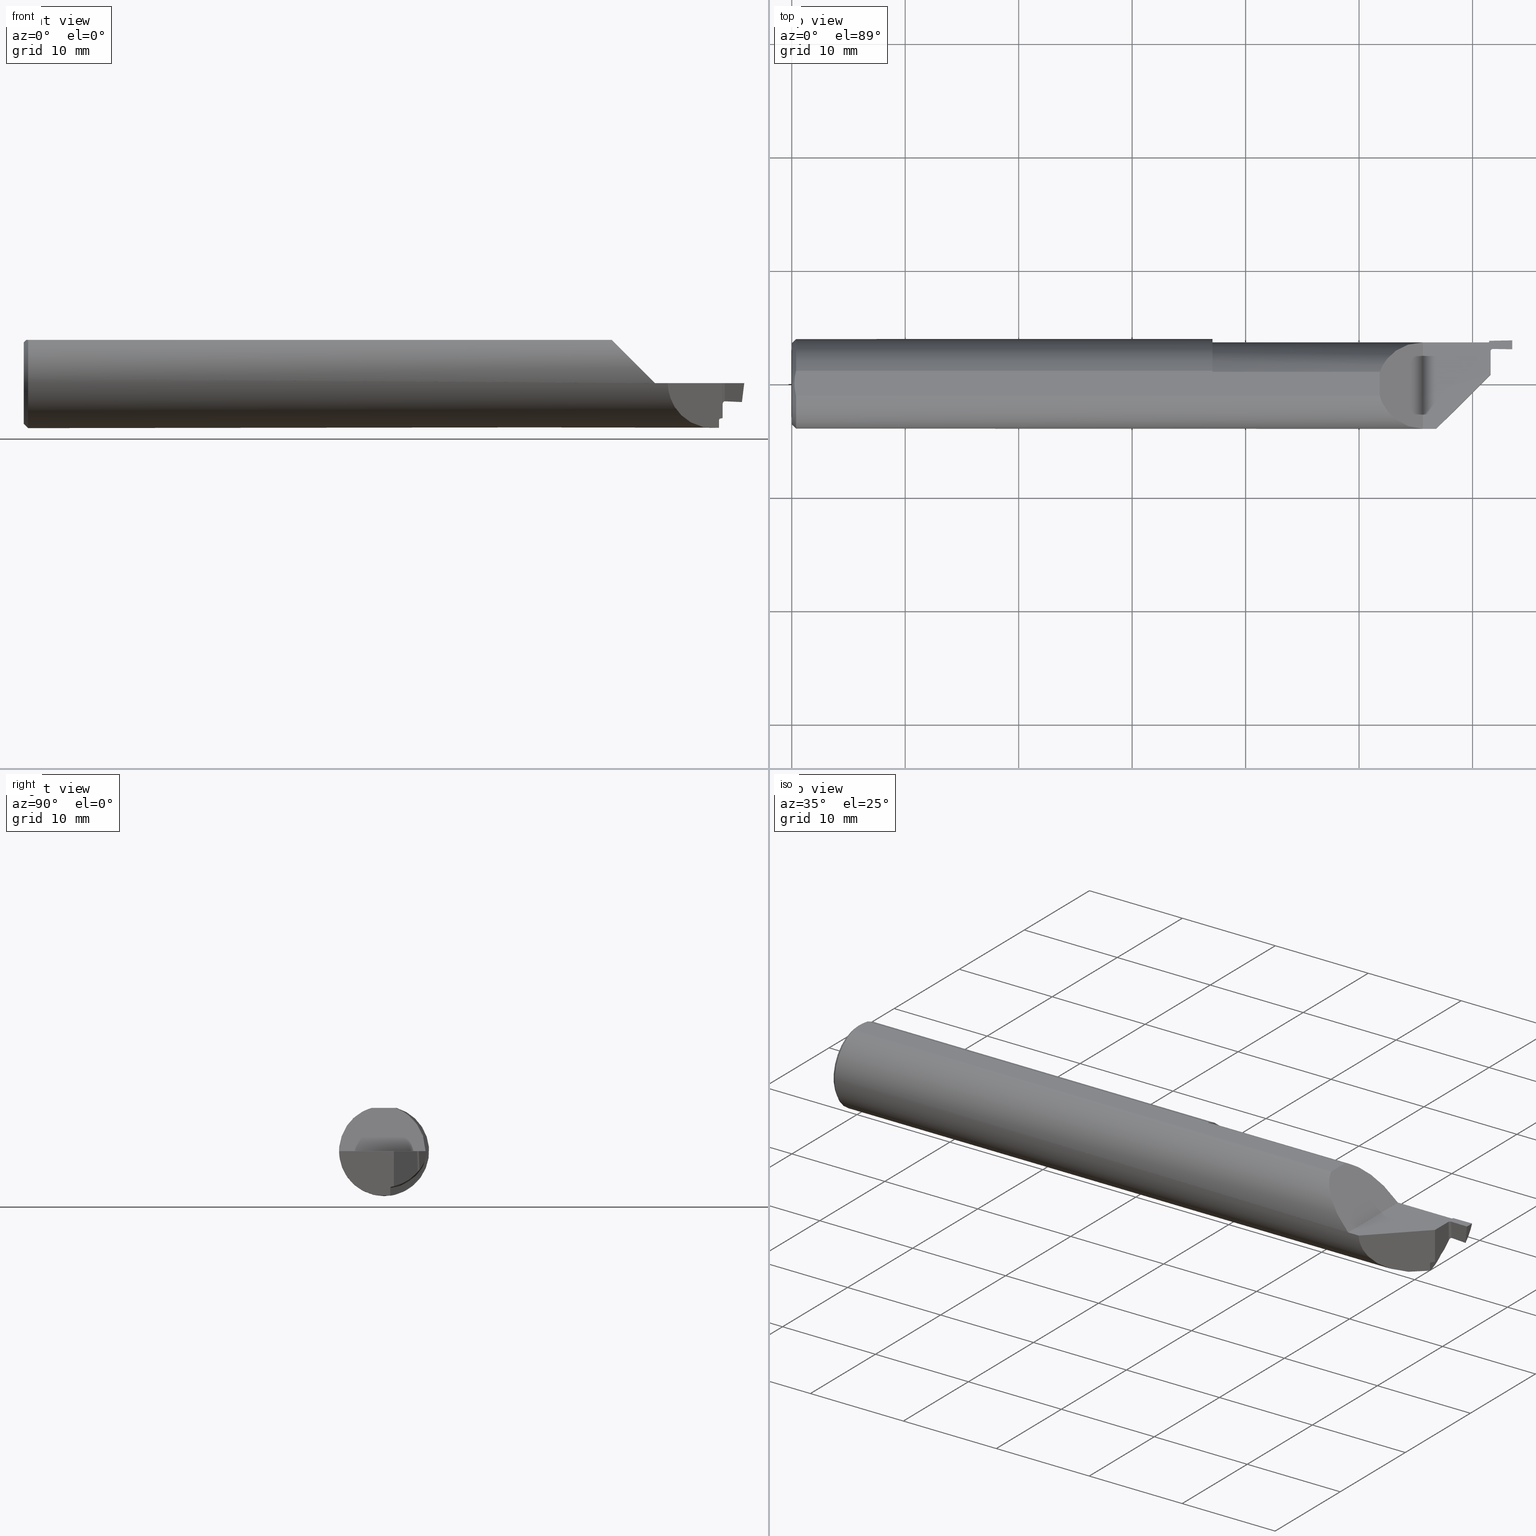
[diagram: canonical four-view strip — front | top / right | iso, engineering-drawing reading convention]
A machine part, canonical four-view strip (front | top / right | iso — engineering-drawing reading convention). The complete STEP part file that produces these views, byte-faithful:
ISO-10303-21;
HEADER;
FILE_DESCRIPTION (( 'STEP AP203' ),
    '1' );
FILE_NAME ('220073-FG312-030.STEP',
    '2024-06-10T23:01:41',
    ( '' ),
    ( '' ),
    'SwSTEP 2.0',
    'SolidWorks 2022',
    '' );
FILE_SCHEMA (( 'CONFIG_CONTROL_DESIGN' ));
ENDSEC;

DATA;
#1 = ORIENTED_EDGE ( 'NONE', *, *, #797, .T. ) ;
#2 = EDGE_LOOP ( 'NONE', ( #593, #512, #666, #639, #420, #343, #502 ) ) ;
#3 = CARTESIAN_POINT ( 'NONE',  ( 2.410339872995253430, 0.1358432710433603585, -0.05093267548819575830 ) ) ;
#4 = ORIENTED_EDGE ( 'NONE', *, *, #803, .T. ) ;
#5 = APPROVAL_PERSON_ORGANIZATION ( #162, #403, #670 ) ;
#6 = ORIENTED_EDGE ( 'NONE', *, *, #707, .F. ) ;
#7 = CARTESIAN_POINT ( 'NONE',  ( 2.410367050542459921, 0.1342862704047140809, -0.05517114649464890247 ) ) ;
#8 = DIRECTION ( 'NONE',  ( -0.9998476951563914916, -0.01745240643726934937, 0.000000000000000000 ) ) ;
#9 = CARTESIAN_POINT ( 'NONE',  ( 2.425000000000000266, 0.03390000000000001346, -0.1215404680557675837 ) ) ;
#10 = CARTESIAN_POINT ( 'NONE',  ( 0.01499999999999970281, 0.000000000000000000, -0.1560999999999999888 ) ) ;
#11 = TOROIDAL_SURFACE ( 'NONE', #617, 0.1549999999999999989, 0.005000000000000000104 ) ;
#12 = CARTESIAN_POINT ( 'NONE',  ( 2.500000000000000000, 0.1200992383597803692, 0.000000000000000000 ) ) ;
#13 = ADVANCED_FACE ( 'NONE', ( #527 ), #790, .F. ) ;
#14 =( BOUNDED_CURVE ( )  B_SPLINE_CURVE ( 3, ( #693, #568, #624, #632 ),
 .UNSPECIFIED., .F., .T. ) 
 B_SPLINE_CURVE_WITH_KNOTS ( ( 4, 4 ),
 ( 1.062754822839803381, 1.544540906567494876 ),
 .UNSPECIFIED. ) 
 CURVE ( )  GEOMETRIC_REPRESENTATION_ITEM ( )  RATIONAL_B_SPLINE_CURVE ( ( 1.000000000000000000, 0.9807502061007760119, 0.9807502061007760119, 1.000000000000000000 ) ) 
 REPRESENTATION_ITEM ( '' )  );
#15 = EDGE_LOOP ( 'NONE', ( #737, #613, #772, #390, #741 ) ) ;
#16 = DIRECTION ( 'NONE',  ( -0.0006090802009083879243, -0.03489418134011375294, 0.9993908270190957621 ) ) ;
#17 = ORIENTED_EDGE ( 'NONE', *, *, #198, .T. ) ;
#18 = VERTEX_POINT ( 'NONE', #209 ) ;
#19 = CARTESIAN_POINT ( 'NONE',  ( 2.415246186865591671, 0.1412541801540121988, -0.03003871284944778855 ) ) ;
#20 = CARTESIAN_POINT ( 'NONE',  ( 2.189999999999999947, -0.1560999679692472164, 9.999999999982123341E-05 ) ) ;
#21 = AXIS2_PLACEMENT_3D ( 'NONE', #600, #360, #285 ) ;
#22 = ORIENTED_EDGE ( 'NONE', *, *, #654, .F. ) ;
#23 = CARTESIAN_POINT ( 'NONE',  ( 1.460000000000000187, 0.04286257108480545641, 0.1500999999999999834 ) ) ;
#24 = DATE_AND_TIME ( #676, #252 ) ;
#25 = CARTESIAN_POINT ( 'NONE',  ( 2.415246186865591671, 0.1412541801540121988, -0.03003871284944778855 ) ) ;
#26 = ORIENTED_EDGE ( 'NONE', *, *, #290, .F. ) ;
#27 = CARTESIAN_POINT ( 'NONE',  ( 0.000000000000000000, 1.727976633596919191E-17, 0.1411000000000003085 ) ) ;
#28 = PLANE ( 'NONE',  #408 ) ;
#29 = FACE_OUTER_BOUND ( 'NONE', #292, .T. ) ;
#30 = ADVANCED_FACE ( 'NONE', ( #73 ), #11, .F. ) ;
#31 = EDGE_LOOP ( 'NONE', ( #785, #470, #163, #438, #795, #762 ) ) ;
#32 = DIRECTION ( 'NONE',  ( 0.000000000000000000, 0.000000000000000000, -1.000000000000000000 ) ) ;
#33 = CARTESIAN_POINT ( 'NONE',  ( 2.425001483111415723, 0.1134172310198061362, -0.0002790132549075327378 ) ) ;
#34 = CARTESIAN_POINT ( 'NONE',  ( 2.433000000000000274, 0.1132675090856191391, 0.000000000000000000 ) ) ;
#35 = ADVANCED_FACE ( 'NONE', ( #333 ), #514, .F. ) ;
#36 = VERTEX_POINT ( 'NONE', #665 ) ;
#37 = AXIS2_PLACEMENT_3D ( 'NONE', #489, #174, #500 ) ;
#38 = AXIS2_PLACEMENT_3D ( 'NONE', #753, #423, #539 ) ;
#39 = CARTESIAN_POINT ( 'NONE',  ( 0.000000000000000000, 0.000000000000000000, 0.000000000000000000 ) ) ;
#40 =( NAMED_UNIT ( * ) PLANE_ANGLE_UNIT ( ) SI_UNIT ( $, .RADIAN. ) );
#41 = DIRECTION ( 'NONE',  ( -0.7071067811865489050, -0.7071067811865461294, 0.000000000000000000 ) ) ;
#42 = CARTESIAN_POINT ( 'NONE',  ( 2.425025242321284136, 0.1139302148818168298, -0.04141809946750363292 ) ) ;
#43 = EDGE_CURVE ( 'NONE', #215, #809, #243, .T. ) ;
#44 = DIRECTION ( 'NONE',  ( -0.0006090802009083879243, -0.03489418134011375294, 0.9993908270190957621 ) ) ;
#45 = CARTESIAN_POINT ( 'NONE',  ( 2.425000000000000266, 0.03390000000000001346, -0.1560999999999999888 ) ) ;
#46 = CALENDAR_DATE ( 2024, 10, 6 ) ;
#47 = CARTESIAN_POINT ( 'NONE',  ( 0.01308010236197408062, -0.03587054952121924989, 0.1500999999999999834 ) ) ;
#48 = DIRECTION ( 'NONE',  ( 1.000000000000000000, 0.000000000000000000, 0.000000000000000000 ) ) ;
#49 = EDGE_CURVE ( 'NONE', #284, #505, #274, .T. ) ;
#50 = SHAPE_DEFINITION_REPRESENTATION ( #486, #669 ) ;
#51 = DIRECTION ( 'NONE',  ( 0.000000000000000000, -1.000000000000000000, 0.000000000000000000 ) ) ;
#52 = ORIENTED_EDGE ( 'NONE', *, *, #756, .F. ) ;
#53 =( BOUNDED_CURVE ( )  B_SPLINE_CURVE ( 3, ( #626, #185, #437, #192 ),
 .UNSPECIFIED., .F., .T. ) 
 B_SPLINE_CURVE_WITH_KNOTS ( ( 4, 4 ),
 ( 4.713013980425380112, 5.929564525929066576 ),
 .UNSPECIFIED. ) 
 CURVE ( )  GEOMETRIC_REPRESENTATION_ITEM ( )  RATIONAL_B_SPLINE_CURVE ( ( 1.000000000000000000, 0.8804232255846620170, 0.8804232255846620170, 1.000000000000000000 ) ) 
 REPRESENTATION_ITEM ( '' )  );
#54 = DIRECTION ( 'NONE',  ( -1.000000000000000000, -0.000000000000000000, -0.000000000000000000 ) ) ;
#55 = PERSON_AND_ORGANIZATION ( #395, #83 ) ;
#56 = CARTESIAN_POINT ( 'NONE',  ( 0.008999999999999465025, -0.007244529225202475144, 0.1500999999999999834 ) ) ;
#57 = VERTEX_POINT ( 'NONE', #402 ) ;
#58 = ORIENTED_EDGE ( 'NONE', *, *, #523, .T. ) ;
#59 = DIRECTION ( 'NONE',  ( 0.000000000000000000, 1.000000000000000000, 0.000000000000000000 ) ) ;
#60 = CARTESIAN_POINT ( 'NONE',  ( 1.938500000000000112, 0.03081474338883894229, -0.1530283032313957403 ) ) ;
#61 = EDGE_LOOP ( 'NONE', ( #831, #88, #712, #576, #207 ) ) ;
#62 = DIRECTION ( 'NONE',  ( -0.000000000000000000, -0.000000000000000000, 1.000000000000000000 ) ) ;
#63 = CARTESIAN_POINT ( 'NONE',  ( 2.413539792713095711, 0.1409844017169971930, -0.03142091763420357120 ) ) ;
#64 = VECTOR ( 'NONE', #524, 39.37007874015748143 ) ;
#65 = ORIENTED_EDGE ( 'NONE', *, *, #338, .T. ) ;
#66 = ORIENTED_EDGE ( 'NONE', *, *, #711, .F. ) ;
#67 = LINE ( 'NONE', #641, #479 ) ;
#68 = EDGE_CURVE ( 'NONE', #152, #700, #743, .T. ) ;
#69 = DIRECTION ( 'NONE',  ( -1.000000000000000000, -0.000000000000000000, -0.000000000000000000 ) ) ;
#70 = PRODUCT_DEFINITION_FORMATION_WITH_SPECIFIED_SOURCE ( 'ANY', '', #750, .NOT_KNOWN. ) ;
#71 = VERTEX_POINT ( 'NONE', #10 ) ;
#72 = CARTESIAN_POINT ( 'NONE',  ( 2.425044239961082315, 0.1157969674013244743, -0.07258980217702561133 ) ) ;
#73 = FACE_OUTER_BOUND ( 'NONE', #461, .T. ) ;
#74 = ORIENTED_EDGE ( 'NONE', *, *, #763, .T. ) ;
#75 = EDGE_CURVE ( 'NONE', #236, #126, #278, .T. ) ;
#76 = CARTESIAN_POINT ( 'NONE',  ( 2.425000000000000266, 0.1132675090856191391, -0.07546587076650415615 ) ) ;
#77 = CARTESIAN_POINT ( 'NONE',  ( 2.425039367740867480, 0.1155091351911401859, -0.0002059503887051005692 ) ) ;
#78 = VERTEX_POINT ( 'NONE', #342 ) ;
#79 = CARTESIAN_POINT ( 'NONE',  ( 2.419849323330116597, 0.02874932333011693056, -0.1225781668623821680 ) ) ;
#80 = CARTESIAN_POINT ( 'NONE',  ( 2.472080432957776797, 0.1228502612264647104, -0.06481358440678404442 ) ) ;
#81 = ORIENTED_EDGE ( 'NONE', *, *, #286, .T. ) ;
#82 = PRODUCT_RELATED_PRODUCT_CATEGORY ( 'detail', '', ( #750 ) ) ;
#83 = ORGANIZATION ( 'UNSPECIFIED', 'UNSPECIFIED', '' ) ;
#84 = CARTESIAN_POINT ( 'NONE',  ( 2.415830788882866731, 0.1412445888308691833, -0.03008889222423504275 ) ) ;
#85 = APPLICATION_PROTOCOL_DEFINITION ( 'international standard', 'config_control_design', 1994, #555 ) ;
#86 = CARTESIAN_POINT ( 'NONE',  ( 2.410674172906858814, 0.1166912419323255651, -0.1030683767120857686 ) ) ;
#87 = EDGE_CURVE ( 'NONE', #97, #312, #558, .T. ) ;
#88 = ORIENTED_EDGE ( 'NONE', *, *, #518, .T. ) ;
#89 = CARTESIAN_POINT ( 'NONE',  ( 2.189999999999999947, -0.2560999999999999943, 0.000000000000000000 ) ) ;
#90 = COORDINATED_UNIVERSAL_TIME_OFFSET ( 8, 0, .BEHIND. ) ;
#91 = LINE ( 'NONE', #808, #324 ) ;
#92 = VECTOR ( 'NONE', #99, 39.37007874015748143 ) ;
#93 = ORIENTED_EDGE ( 'NONE', *, *, #112, .T. ) ;
#94 = CARTESIAN_POINT ( 'NONE',  ( 2.039999999999999591, 0.03950672882812745340, 0.1500999999999999834 ) ) ;
#95 = CARTESIAN_POINT ( 'NONE',  ( 2.433178129481958329, 0.1234675780321281974, -0.06304626864655113461 ) ) ;
#96 = EDGE_CURVE ( 'NONE', #78, #498, #468, .T. ) ;
#97 = VERTEX_POINT ( 'NONE', #780 ) ;
#98 = LOCAL_TIME ( 16, 1, 41.00000000000000000, #564 ) ;
#99 = DIRECTION ( 'NONE',  ( 0.7071067811865483499, 0.000000000000000000, -0.7071067811865466846 ) ) ;
#100 = ADVANCED_FACE ( 'NONE', ( #205 ), #457, .T. ) ;
#101 =( CONVERSION_BASED_UNIT ( 'INCH', #543 ) LENGTH_UNIT ( ) NAMED_UNIT ( #114 ) );
#102 = DIRECTION ( 'NONE',  ( 0.000000000000000000, 0.000000000000000000, 1.000000000000000000 ) ) ;
#103 = ORIENTED_EDGE ( 'NONE', *, *, #351, .T. ) ;
#104 = DIRECTION ( 'NONE',  ( -1.000000000000000000, -0.000000000000000000, -0.000000000000000000 ) ) ;
#105 =( BOUNDED_CURVE ( )  B_SPLINE_CURVE ( 3, ( #20, #686, #217, #353 ),
 .UNSPECIFIED., .F., .T. ) 
 B_SPLINE_CURVE_WITH_KNOTS ( ( 4, 4 ),
 ( 4.713029595418896101, 6.005028202575334539 ),
 .UNSPECIFIED. ) 
 CURVE ( )  GEOMETRIC_REPRESENTATION_ITEM ( )  RATIONAL_B_SPLINE_CURVE ( ( 1.000000000000000000, 0.8656657255323875200, 0.8656657255323875200, 1.000000000000000000 ) ) 
 REPRESENTATION_ITEM ( '' )  );
#106 = DIRECTION ( 'NONE',  ( -0.0006094513490878692916, 0.000000000000000000, 0.9999998142845092364 ) ) ;
#107 = AXIS2_PLACEMENT_3D ( 'NONE', #364, #48, #706 ) ;
#108 = VECTOR ( 'NONE', #16, 39.37007874015748143 ) ;
#109 = CARTESIAN_POINT ( 'NONE',  ( 2.425000000000000266, 0.03390000000000001346, -0.1215404680557675837 ) ) ;
#110 = COORDINATED_UNIVERSAL_TIME_OFFSET ( 8, 0, .BEHIND. ) ;
#111 = DIRECTION ( 'NONE',  ( 1.000000000000000000, 0.000000000000000000, 0.000000000000000000 ) ) ;
#112 = EDGE_CURVE ( 'NONE', #297, #97, #531, .T. ) ;
#113 = CARTESIAN_POINT ( 'NONE',  ( 2.425045413323011712, 0.1141187145827106536, -0.07451507761243557348 ) ) ;
#114 = DIMENSIONAL_EXPONENTS ( 1.000000000000000000, 0.000000000000000000, 0.000000000000000000, 0.000000000000000000, 0.000000000000000000, 0.000000000000000000, 0.000000000000000000 ) ;
#115 = CARTESIAN_POINT ( 'NONE',  ( 2.417651584860487368, 0.1413420234085522587, -0.02992312736016335128 ) ) ;
#116 = ADVANCED_FACE ( 'NONE', ( #29 ), #473, .F. ) ;
#117 = CARTESIAN_POINT ( 'NONE',  ( 2.425011781546424494, 0.1137411175151299692, -0.01933139413795211328 ) ) ;
#118 = CARTESIAN_POINT ( 'NONE',  ( 2.433379501196029526, 0.1350041558047750112, -0.3934609555193290253 ) ) ;
#119 = ORIENTED_EDGE ( 'NONE', *, *, #307, .T. ) ;
#120 = AXIS2_PLACEMENT_3D ( 'NONE', #289, #104, #32 ) ;
#121 = CARTESIAN_POINT ( 'NONE',  ( 0.000000000000000000, 0.000000000000000000, -0.1411000000000003085 ) ) ;
#122 = CIRCLE ( 'NONE', #259, 0.1630000000000001170 ) ;
#123 = DIRECTION ( 'NONE',  ( 0.000000000000000000, -1.000000000000000000, 0.000000000000000000 ) ) ;
#124 = ORIENTED_EDGE ( 'NONE', *, *, #140, .T. ) ;
#125 = EDGE_CURVE ( 'NONE', #788, #525, #811, .T. ) ;
#126 = VERTEX_POINT ( 'NONE', #671 ) ;
#127 = CARTESIAN_POINT ( 'NONE',  ( 2.425000000000000266, 0.03390000000000001346, 0.000000000000000000 ) ) ;
#128 = COORDINATED_UNIVERSAL_TIME_OFFSET ( 8, 0, .BEHIND. ) ;
#129 = EDGE_CURVE ( 'NONE', #215, #262, #426, .T. ) ;
#130 = CARTESIAN_POINT ( 'NONE',  ( 0.000000000000000000, 1.819825143532968629E-17, 0.1411000000000003085 ) ) ;
#131 = ORIENTED_EDGE ( 'NONE', *, *, #583, .T. ) ;
#132 = AXIS2_PLACEMENT_3D ( 'NONE', #601, #412, #154 ) ;
#133 = CARTESIAN_POINT ( 'NONE',  ( 2.433000000000000274, 0.1132675090856191391, -0.1560999999999999888 ) ) ;
#134 = DIRECTION ( 'NONE',  ( 4.001730459469135844E-17, 1.000000000000000000, 0.000000000000000000 ) ) ;
#135 = ORIENTED_EDGE ( 'NONE', *, *, #261, .T. ) ;
#136 = VERTEX_POINT ( 'NONE', #545 ) ;
#137 = CARTESIAN_POINT ( 'NONE',  ( 2.414190716435626882, 0.1411693645472843484, -0.03048284773503953313 ) ) ;
#138 = VECTOR ( 'NONE', #255, 39.37007874015748143 ) ;
#139 = CARTESIAN_POINT ( 'NONE',  ( 2.413115654034749813, 0.02201565403474930321, -0.1256608521934950151 ) ) ;
#140 = EDGE_CURVE ( 'NONE', #608, #715, #91, .T. ) ;
#141 = ORIENTED_EDGE ( 'NONE', *, *, #140, .F. ) ;
#142 = LINE ( 'NONE', #393, #108 ) ;
#143 = DIRECTION ( 'NONE',  ( -1.000000000000000000, 4.001730459469135844E-17, -0.000000000000000000 ) ) ;
#144 = ADVANCED_FACE ( 'NONE', ( #227 ), #799, .F. ) ;
#145 = VERTEX_POINT ( 'NONE', #602 ) ;
#146 = DIRECTION ( 'NONE',  ( -4.001730459469135844E-17, -1.000000000000000000, 0.000000000000000000 ) ) ;
#147 = EDGE_LOOP ( 'NONE', ( #156, #595, #103, #599 ) ) ;
#148 = DIRECTION ( 'NONE',  ( -1.000000000000000000, 4.001730459469135844E-17, -0.000000000000000000 ) ) ;
#149 = AXIS2_PLACEMENT_3D ( 'NONE', #281, #406, #231 ) ;
#150 = CARTESIAN_POINT ( 'NONE',  ( 2.433178129481958329, 0.1234675780321281974, -0.06304626864655113461 ) ) ;
#151 = AXIS2_PLACEMENT_3D ( 'NONE', #177, #111, #433 ) ;
#152 = VERTEX_POINT ( 'NONE', #95 ) ;
#153 = CARTESIAN_POINT ( 'NONE',  ( 2.189999999999999947, -0.1560999999999999888, 0.000000000000000000 ) ) ;
#154 = DIRECTION ( 'NONE',  ( 1.000000000000000000, 0.000000000000000000, 0.000000000000000000 ) ) ;
#155 = ORIENTED_EDGE ( 'NONE', *, *, #711, .T. ) ;
#156 = ORIENTED_EDGE ( 'NONE', *, *, #112, .F. ) ;
#157 = CARTESIAN_POINT ( 'NONE',  ( 2.416415393262477895, 0.1412349785471047059, -0.03013904046635193512 ) ) ;
#158 = FACE_OUTER_BOUND ( 'NONE', #566, .T. ) ;
#159 = ORIENTED_EDGE ( 'NONE', *, *, #460, .F. ) ;
#160 = EDGE_CURVE ( 'NONE', #321, #608, #806, .T. ) ;
#161 = DIRECTION ( 'NONE',  ( 0.000000000000000000, 0.000000000000000000, 1.000000000000000000 ) ) ;
#162 = PERSON_AND_ORGANIZATION ( #395, #83 ) ;
#163 = ORIENTED_EDGE ( 'NONE', *, *, #75, .T. ) ;
#164 = DIRECTION ( 'NONE',  ( -0.000000000000000000, 1.000000000000000000, 0.000000000000000000 ) ) ;
#165 = APPROVAL_STATUS ( 'not_yet_approved' ) ;
#166 = CARTESIAN_POINT ( 'NONE',  ( 2.433379501196029526, 0.1350041558047750112, -0.3934609555193290253 ) ) ;
#167 = VERTEX_POINT ( 'NONE', #25 ) ;
#168 = ADVANCED_FACE ( 'NONE', ( #239 ), #535, .F. ) ;
#169 = DIRECTION ( 'NONE',  ( 0.000000000000000000, 1.000000000000000000, 0.000000000000000000 ) ) ;
#170 = CC_DESIGN_PERSON_AND_ORGANIZATION_ASSIGNMENT ( #664, #294, ( #750 ) ) ;
#171 = CARTESIAN_POINT ( 'NONE',  ( 2.592654800318510588, 0.004792009716235281873, 0.02500000000000001180 ) ) ;
#172 = AXIS2_PLACEMENT_3D ( 'NONE', #748, #466, #529 ) ;
#173 = AXIS2_PLACEMENT_3D ( 'NONE', #34, #102, #618 ) ;
#174 = DIRECTION ( 'NONE',  ( 1.000000000000000000, 0.000000000000000000, 0.000000000000000000 ) ) ;
#175 = PERSON_AND_ORGANIZATION_ROLE ( 'classification_officer' ) ;
#176 = APPLICATION_CONTEXT ( 'configuration controlled 3d designs of mechanical parts and assemblies' ) ;
#177 = CARTESIAN_POINT ( 'NONE',  ( 0.000000000000000000, 0.000000000000000000, 0.000000000000000000 ) ) ;
#178 = ADVANCED_FACE ( 'NONE', ( #158 ), #346, .T. ) ;
#179 = FACE_OUTER_BOUND ( 'NONE', #15, .T. ) ;
#180 = DATE_AND_TIME ( #299, #663 ) ;
#181 = CARTESIAN_POINT ( 'NONE',  ( 2.433139705841341094, 0.1212662891354388955, 3.308097179827818972E-17 ) ) ;
#182 = VERTEX_POINT ( 'NONE', #223 ) ;
#183 = CARTESIAN_POINT ( 'NONE',  ( 2.425000000000000266, 0.1132675090856191391, -0.07546587076650415615 ) ) ;
#184 = EDGE_CURVE ( 'NONE', #312, #78, #594, .T. ) ;
#185 = CARTESIAN_POINT ( 'NONE',  ( 2.120766287695780239, 0.1440559360311356729, 0.06933371230421989106 ) ) ;
#186 = ORIENTED_EDGE ( 'NONE', *, *, #224, .F. ) ;
#187 = ADVANCED_FACE ( 'NONE', ( #311 ), #556, .F. ) ;
#188 = CIRCLE ( 'NONE', #570, 0.1560999999999999888 ) ;
#189 = CARTESIAN_POINT ( 'NONE',  ( 2.491934713944349511, 0.1225341904202897209, -0.06568648367793161746 ) ) ;
#190 = AXIS2_PLACEMENT_3D ( 'NONE', #407, #8, #653 ) ;
#191 = APPROVAL_STATUS ( 'not_yet_approved' ) ;
#192 = CARTESIAN_POINT ( 'NONE',  ( 2.039999999999999591, 0.03950672882812745340, 0.1500999999999999834 ) ) ;
#193 = ORIENTED_EDGE ( 'NONE', *, *, #213, .F. ) ;
#194 = DIRECTION ( 'NONE',  ( 0.000000000000000000, -1.000000000000000000, 0.000000000000000000 ) ) ;
#195 = CARTESIAN_POINT ( 'NONE',  ( 2.419999999999999929, -0.01590076164021981056, 0.000000000000000000 ) ) ;
#196 = ORIENTED_EDGE ( 'NONE', *, *, #250, .F. ) ;
#197 =( GEOMETRIC_REPRESENTATION_CONTEXT ( 3 ) GLOBAL_UNCERTAINTY_ASSIGNED_CONTEXT ( ( #751 ) ) GLOBAL_UNIT_ASSIGNED_CONTEXT ( ( #101, #40, #597 ) ) REPRESENTATION_CONTEXT ( 'NONE', 'WORKASPACE' ) );
#198 = EDGE_CURVE ( 'NONE', #525, #321, #777, .T. ) ;
#199 = ORIENTED_EDGE ( 'NONE', *, *, #87, .T. ) ;
#200 = DIRECTION ( 'NONE',  ( -1.000000000000000000, 4.001730459469135844E-17, 0.000000000000000000 ) ) ;
#201 = CARTESIAN_POINT ( 'NONE',  ( 2.412228558182164306, 0.02764056915058612021, -0.1536674749568722742 ) ) ;
#202 = ORIENTED_EDGE ( 'NONE', *, *, #413, .T. ) ;
#203 = FACE_OUTER_BOUND ( 'NONE', #229, .T. ) ;
#204 = AXIS2_PLACEMENT_3D ( 'NONE', #431, #54, #563 ) ;
#205 = FACE_OUTER_BOUND ( 'NONE', #769, .T. ) ;
#206 = EDGE_CURVE ( 'NONE', #335, #505, #53, .T. ) ;
#207 = ORIENTED_EDGE ( 'NONE', *, *, #591, .F. ) ;
#208 = CARTESIAN_POINT ( 'NONE',  ( 2.419999999999999929, 0.1464269835972215605, -0.01478861474676946251 ) ) ;
#209 = CARTESIAN_POINT ( 'NONE',  ( 2.189999999999999947, -0.1560999679692472164, 9.999999999982123341E-05 ) ) ;
#210 = APPROVAL_PERSON_ORGANIZATION ( #55, #469, #245 ) ;
#211 = ORIENTED_EDGE ( 'NONE', *, *, #213, .T. ) ;
#212 = CARTESIAN_POINT ( 'NONE',  ( 2.417000000000000259, -0.01590076164021981750, 0.000000000000000000 ) ) ;
#213 = EDGE_CURVE ( 'NONE', #263, #321, #122, .T. ) ;
#214 = CARTESIAN_POINT ( 'NONE',  ( 2.412340275719562221, 0.02124027571956232582, -0.1271017027102347707 ) ) ;
#215 = VERTEX_POINT ( 'NONE', #181 ) ;
#216 = DIRECTION ( 'NONE',  ( 0.9998476951563914916, 0.01745240643726934937, -0.000000000000000000 ) ) ;
#217 = CARTESIAN_POINT ( 'NONE',  ( 2.059871508359184311, -0.1124504032942231085, 0.1302284916408148197 ) ) ;
#218 = VECTOR ( 'NONE', #733, 39.37007874015748143 ) ;
#219 = AXIS2_PLACEMENT_3D ( 'NONE', #722, #200, #789 ) ;
#220 = VERTEX_POINT ( 'NONE', #130 ) ;
#221 = CARTESIAN_POINT ( 'NONE',  ( 2.425000000000000266, 0.1132675090856191391, -0.1560999999999999888 ) ) ;
#222 = CARTESIAN_POINT ( 'NONE',  ( 0.008999999999999475433, 0.007249779851909447098, 0.1500999999999999834 ) ) ;
#223 = CARTESIAN_POINT ( 'NONE',  ( 2.189999999999999947, 0.1440992383597802240, 0.000000000000000000 ) ) ;
#224 = EDGE_CURVE ( 'NONE', #97, #136, #379, .T. ) ;
#225 = ORIENTED_EDGE ( 'NONE', *, *, #430, .T. ) ;
#226 = CYLINDRICAL_SURFACE ( 'NONE', #643, 0.1499999999999999667 ) ;
#227 = FACE_OUTER_BOUND ( 'NONE', #2, .T. ) ;
#228 = EDGE_CURVE ( 'NONE', #700, #715, #14, .T. ) ;
#229 = EDGE_LOOP ( 'NONE', ( #58, #211, #277, #268 ) ) ;
#230 = LINE ( 'NONE', #745, #822 ) ;
#231 = DIRECTION ( 'NONE',  ( 0.1218693434051483226, 0.000000000000000000, 0.9925461516413218721 ) ) ;
#232 = DIRECTION ( 'NONE',  ( 0.000000000000000000, 0.000000000000000000, -1.000000000000000000 ) ) ;
#233 = CIRCLE ( 'NONE', #120, 0.1411000000000003085 ) ;
#234 = EDGE_CURVE ( 'NONE', #57, #387, #678, .T. ) ;
#235 = AXIS2_PLACEMENT_3D ( 'NONE', #687, #425, #41 ) ;
#236 = VERTEX_POINT ( 'NONE', #306 ) ;
#237 = DIRECTION ( 'NONE',  ( 0.000000000000000000, 0.000000000000000000, -1.000000000000000000 ) ) ;
#238 = ADVANCED_FACE ( 'NONE', ( #833 ), #544, .T. ) ;
#239 = FACE_OUTER_BOUND ( 'NONE', #31, .T. ) ;
#240 = LOCAL_TIME ( 16, 1, 41.00000000000000000, #691 ) ;
#241 = CARTESIAN_POINT ( 'NONE',  ( 2.451416069655642627, 0.1347669811383211957, -0.3956843595570300187 ) ) ;
#242 = DIRECTION ( 'NONE',  ( 0.7071067811865462405, -0.000000000000000000, 0.7071067811865487940 ) ) ;
#243 = B_SPLINE_CURVE_WITH_KNOTS ( 'NONE', 3,
 ( #519, #326, #659, #459, #77, #339 ),
 .UNSPECIFIED., .F., .F.,
 ( 4, 2, 4 ),
 ( 0.000000000000000000, 0.5000000000000000000, 1.000000000000000000 ),
 .UNSPECIFIED. ) ;
#244 = DIRECTION ( 'NONE',  ( 4.001730459469135844E-17, 1.000000000000000000, 0.000000000000000000 ) ) ;
#245 = APPROVAL_ROLE ( '' ) ;
#246 = DIRECTION ( 'NONE',  ( -1.000000000000000000, 0.000000000000000000, -0.000000000000000000 ) ) ;
#247 = AXIS2_PLACEMENT_3D ( 'NONE', #411, #538, #802 ) ;
#248 = CARTESIAN_POINT ( 'NONE',  ( 2.425000000000000266, 0.1132675090856191391, 0.000000000000000000 ) ) ;
#249 = VERTEX_POINT ( 'NONE', #830 ) ;
#250 = EDGE_CURVE ( 'NONE', #152, #215, #699, .T. ) ;
#251 = PLANE ( 'NONE',  #308 ) ;
#252 = LOCAL_TIME ( 16, 1, 41.00000000000000000, #90 ) ;
#253 = PERSON_AND_ORGANIZATION ( #395, #83 ) ;
#254 = ORIENTED_EDGE ( 'NONE', *, *, #160, .F. ) ;
#255 = DIRECTION ( 'NONE',  ( -0.000000000000000000, -0.000000000000000000, 1.000000000000000000 ) ) ;
#256 = CARTESIAN_POINT ( 'NONE',  ( 2.419233038558775917, 0.1430208654557851844, -0.02554458597577633980 ) ) ;
#257 = EDGE_LOOP ( 'NONE', ( #6, #657, #783 ) ) ;
#258 = CARTESIAN_POINT ( 'NONE',  ( 2.425045025109166197, 0.1146835897463743259, -0.07387808866435648103 ) ) ;
#259 = AXIS2_PLACEMENT_3D ( 'NONE', #195, #370, #123 ) ;
#260 = CARTESIAN_POINT ( 'NONE',  ( 2.419999999999999929, 0.1464269835972215605, -0.01478861474676946251 ) ) ;
#261 = EDGE_CURVE ( 'NONE', #262, #642, #823, .T. ) ;
#262 = VERTEX_POINT ( 'NONE', #621 ) ;
#263 = VERTEX_POINT ( 'NONE', #552 ) ;
#264 = CARTESIAN_POINT ( 'NONE',  ( 2.412340275719562221, 0.02124027571956232235, -0.1546481835889350898 ) ) ;
#265 = ADVANCED_FACE ( 'NONE', ( #496 ), #819, .F. ) ;
#266 = CARTESIAN_POINT ( 'NONE',  ( 2.414660684680331570, 0.1412637862458374360, -0.02998845620865091960 ) ) ;
#267 = DIRECTION ( 'NONE',  ( 1.000000000000000000, 0.000000000000000000, 0.000000000000000000 ) ) ;
#268 = ORIENTED_EDGE ( 'NONE', *, *, #125, .F. ) ;
#269 = AXIS2_PLACEMENT_3D ( 'NONE', #757, #424, #494 ) ;
#270 = CARTESIAN_POINT ( 'NONE',  ( 1.460000000000000187, 0.1440992383597802795, 0.000000000000000000 ) ) ;
#271 = CIRCLE ( 'NONE', #107, 0.1560999999999999888 ) ;
#272 = DIRECTION ( 'NONE',  ( 0.000000000000000000, 0.000000000000000000, -1.000000000000000000 ) ) ;
#273 = CARTESIAN_POINT ( 'NONE',  ( 2.412661596476739945, 0.1405551471962304677, -0.03350666659676166531 ) ) ;
#274 = LINE ( 'NONE', #398, #64 ) ;
#275 = EDGE_CURVE ( 'NONE', #126, #720, #801, .T. ) ;
#276 = EDGE_LOOP ( 'NONE', ( #74, #805, #414 ) ) ;
#277 = ORIENTED_EDGE ( 'NONE', *, *, #198, .F. ) ;
#278 = B_SPLINE_CURVE_WITH_KNOTS ( 'NONE', 3,
 ( #589, #214, #139, #776, #650, #463 ),
 .UNSPECIFIED., .F., .F.,
 ( 4, 2, 4 ),
 ( 0.000000000000000000, 0.0001238164191699202179, 0.0002476328383398404358 ),
 .UNSPECIFIED. ) ;
#279 = ORIENTED_EDGE ( 'NONE', *, *, #334, .F. ) ;
#280 = CARTESIAN_POINT ( 'NONE',  ( 2.433139619251498242, 0.1212662906468702229, 0.000000000000000000 ) ) ;
#281 = CARTESIAN_POINT ( 'NONE',  ( 2.501506277050174365, 0.1560999999999999888, 0.01226764211312855388 ) ) ;
#282 = DIRECTION ( 'NONE',  ( 0.000000000000000000, -1.000000000000000000, 0.000000000000000000 ) ) ;
#283 = CC_DESIGN_PERSON_AND_ORGANIZATION_ASSIGNMENT ( #708, #636, ( #70 ) ) ;
#284 = VERTEX_POINT ( 'NONE', #658 ) ;
#285 = DIRECTION ( 'NONE',  ( -1.000000000000000000, 0.000000000000000000, -0.000000000000000000 ) ) ;
#286 = EDGE_CURVE ( 'NONE', #182, #788, #649, .T. ) ;
#287 = CARTESIAN_POINT ( 'NONE',  ( 2.419999999999999929, 0.1497028331655240463, 0.000000000000000000 ) ) ;
#288 = VERTEX_POINT ( 'NONE', #521 ) ;
#289 = CARTESIAN_POINT ( 'NONE',  ( 0.000000000000000000, 0.000000000000000000, 0.000000000000000000 ) ) ;
#290 = EDGE_CURVE ( 'NONE', #249, #582, #142, .T. ) ;
#291 = DIRECTION ( 'NONE',  ( -0.9999998142845093474, -1.999656853032230264E-15, -0.0006094513490878694000 ) ) ;
#292 = EDGE_LOOP ( 'NONE', ( #516, #679, #732, #196 ) ) ;
#293 = DIRECTION ( 'NONE',  ( -0.000000000000000000, -0.000000000000000000, 1.000000000000000000 ) ) ;
#294 = PERSON_AND_ORGANIZATION_ROLE ( 'design_owner' ) ;
#295 = CONICAL_SURFACE ( 'NONE', #37, 0.1411000000000003085, 0.7853981633974471688 ) ;
#296 = VECTOR ( 'NONE', #366, 39.37007874015748143 ) ;
#297 = VERTEX_POINT ( 'NONE', #456 ) ;
#298 = LINE ( 'NONE', #221, #793 ) ;
#299 = CALENDAR_DATE ( 2024, 10, 6 ) ;
#300 = CC_DESIGN_APPROVAL ( #469, ( #499 ) ) ;
#301 = CC_DESIGN_APPROVAL ( #403, ( #548 ) ) ;
#302 = CARTESIAN_POINT ( 'NONE',  ( 2.425003523125126126, 0.1135059009722883955, -0.005613609509264014946 ) ) ;
#303 = CARTESIAN_POINT ( 'NONE',  ( 0.008999999999998765932, 6.845491512164019265E-17, 0.1500999999999999834 ) ) ;
#304 = CARTESIAN_POINT ( 'NONE',  ( 2.425005047996913188, 0.1135516612778119661, -0.008282853066612959683 ) ) ;
#305 = DATE_AND_TIME ( #46, #240 ) ;
#306 = CARTESIAN_POINT ( 'NONE',  ( 2.412340275719562221, 0.02124027571956232235, -0.1287567129075646577 ) ) ;
#307 = EDGE_CURVE ( 'NONE', #720, #359, #688, .T. ) ;
#308 = AXIS2_PLACEMENT_3D ( 'NONE', #702, #818, #244 ) ;
#309 = DESIGN_CONTEXT ( 'detailed design', #555, 'design' ) ;
#310 = DIRECTION ( 'NONE',  ( 1.000000000000000000, 0.000000000000000000, -0.000000000000000000 ) ) ;
#311 = FACE_OUTER_BOUND ( 'NONE', #705, .T. ) ;
#312 = VERTEX_POINT ( 'NONE', #264 ) ;
#313 = CARTESIAN_POINT ( 'NONE',  ( 2.425000000000000266, 0.03390000000000001346, 0.000000000000000000 ) ) ;
#314 = APPROVAL_STATUS ( 'not_yet_approved' ) ;
#315 = CARTESIAN_POINT ( 'NONE',  ( 0.01156122974740472244, -0.02873113156979012484, 0.1500999999999999279 ) ) ;
#316 = EDGE_CURVE ( 'NONE', #474, #284, #341, .T. ) ;
#317 = VERTEX_POINT ( 'NONE', #12 ) ;
#318 = ORIENTED_EDGE ( 'NONE', *, *, #797, .F. ) ;
#319 = DIRECTION ( 'NONE',  ( -1.000000000000000000, 4.001730459469135844E-17, -0.000000000000000000 ) ) ;
#320 = CARTESIAN_POINT ( 'NONE',  ( 2.418195627409704063, 0.1416865845173140848, -0.02906417550106634579 ) ) ;
#321 = VERTEX_POINT ( 'NONE', #208 ) ;
#322 = VECTOR ( 'NONE', #738, 39.37007874015747433 ) ;
#323 = ORIENTED_EDGE ( 'NONE', *, *, #184, .T. ) ;
#324 = VECTOR ( 'NONE', #485, 39.37007874015748854 ) ;
#325 = DIRECTION ( 'NONE',  ( 0.000000000000000000, 0.000000000000000000, -1.000000000000000000 ) ) ;
#326 = CARTESIAN_POINT ( 'NONE',  ( 2.431046502187411029, 0.1213028261411262937, 8.221211330267974952E-17 ) ) ;
#327 = ADVANCED_FACE ( 'NONE', ( #526 ), #458, .T. ) ;
#328 = ORIENTED_EDGE ( 'NONE', *, *, #286, .F. ) ;
#329 = CARTESIAN_POINT ( 'NONE',  ( 2.410513469640426454, 0.1372236151571464557, -0.04662203022825879561 ) ) ;
#330 = ORIENTED_EDGE ( 'NONE', *, *, #68, .F. ) ;
#331 = ORIENTED_EDGE ( 'NONE', *, *, #430, .F. ) ;
#332 = CARTESIAN_POINT ( 'NONE',  ( 2.425000000000000266, 0.1132675090856191391, -0.07546587076650415615 ) ) ;
#333 = FACE_OUTER_BOUND ( 'NONE', #774, .T. ) ;
#334 = EDGE_CURVE ( 'NONE', #249, #152, #449, .T. ) ;
#335 = VERTEX_POINT ( 'NONE', #513 ) ;
#336 = CARTESIAN_POINT ( 'NONE',  ( 2.415246186865591671, 0.1412541801540121988, -0.03003871284944778855 ) ) ;
#337 = VECTOR ( 'NONE', #429, 39.37007874015748143 ) ;
#338 = EDGE_CURVE ( 'NONE', #263, #608, #652, .T. ) ;
#339 = CARTESIAN_POINT ( 'NONE',  ( 2.425001483111415723, 0.1134172310198061362, -0.0002790132549075327378 ) ) ;
#340 = ORIENTED_EDGE ( 'NONE', *, *, #583, .F. ) ;
#341 = LINE ( 'NONE', #588, #571 ) ;
#342 = CARTESIAN_POINT ( 'NONE',  ( 2.234999999999999432, -0.1560999999999999888, 0.000000000000000000 ) ) ;
#343 = ORIENTED_EDGE ( 'NONE', *, *, #388, .F. ) ;
#344 = CARTESIAN_POINT ( 'NONE',  ( 2.425005047996913188, 0.1135516612778119661, -0.008282853066612959683 ) ) ;
#345 = CARTESIAN_POINT ( 'NONE',  ( 0.01308967235647840940, 0.03590540221680477151, 0.1500999999999999834 ) ) ;
#346 = PLANE ( 'NONE',  #530 ) ;
#347 = ORIENTED_EDGE ( 'NONE', *, *, #622, .T. ) ;
#348 = FACE_OUTER_BOUND ( 'NONE', #724, .T. ) ;
#349 = CIRCLE ( 'NONE', #247, 0.1560999999999999888 ) ;
#350 = ORIENTED_EDGE ( 'NONE', *, *, #250, .T. ) ;
#351 = EDGE_CURVE ( 'NONE', #236, #312, #67, .T. ) ;
#352 = LINE ( 'NONE', #27, #586 ) ;
#353 = CARTESIAN_POINT ( 'NONE',  ( 2.039999999999999591, -0.04286257108480545641, 0.1500999999999999834 ) ) ;
#354 = CARTESIAN_POINT ( 'NONE',  ( 2.412173152764742312, 0.03081474338882098443, -0.1530283032314002645 ) ) ;
#355 = ORIENTED_EDGE ( 'NONE', *, *, #435, .T. ) ;
#356 = FACE_OUTER_BOUND ( 'NONE', #704, .T. ) ;
#357 = CARTESIAN_POINT ( 'NONE',  ( 0.009538385840405057964, 0.01455983656044575192, 0.1500999999999999279 ) ) ;
#358 = CARTESIAN_POINT ( 'NONE',  ( 2.419999999999999929, 0.1477676106602365813, -0.009916345037256616216 ) ) ;
#359 = VERTEX_POINT ( 'NONE', #76 ) ;
#360 = DIRECTION ( 'NONE',  ( 0.000000000000000000, 0.000000000000000000, -1.000000000000000000 ) ) ;
#361 = CARTESIAN_POINT ( 'NONE',  ( 0.01158539406439744110, 0.02885992225672986272, 0.1500999999999999834 ) ) ;
#362 = CIRCLE ( 'NONE', #674, 0.1599999999999999756 ) ;
#363 = AXIS2_PLACEMENT_3D ( 'NONE', #607, #232, #488 ) ;
#364 = CARTESIAN_POINT ( 'NONE',  ( 0.01499999999999970281, 0.000000000000000000, 0.000000000000000000 ) ) ;
#365 = DATE_TIME_ROLE ( 'classification_date' ) ;
#366 = DIRECTION ( 'NONE',  ( -0.0006090802009083879243, -0.03489418134011375294, 0.9993908270190957621 ) ) ;
#367 = CARTESIAN_POINT ( 'NONE',  ( 2.425005047996913188, 0.1135516612778119661, -0.008282853066612959683 ) ) ;
#368 = CC_DESIGN_DATE_AND_TIME_ASSIGNMENT ( #829, #560, ( #548 ) ) ;
#369 = PERSON_AND_ORGANIZATION ( #395, #83 ) ;
#370 = DIRECTION ( 'NONE',  ( -1.000000000000000000, 4.001730459469135844E-17, -0.000000000000000000 ) ) ;
#371 = EDGE_CURVE ( 'NONE', #167, #297, #791, .T. ) ;
#372 = CARTESIAN_POINT ( 'NONE',  ( 1.460000000000000187, 0.000000000000000000, 0.000000000000000000 ) ) ;
#373 = DIRECTION ( 'NONE',  ( -0.000000000000000000, 0.000000000000000000, 1.000000000000000000 ) ) ;
#374 = ORIENTED_EDGE ( 'NONE', *, *, #644, .F. ) ;
#375 = CIRCLE ( 'NONE', #542, 0.1560999999999999888 ) ;
#376 = DIRECTION ( 'NONE',  ( 1.000000000000000000, -4.001730459469135844E-17, 0.000000000000000000 ) ) ;
#377 = ADVANCED_FACE ( 'NONE', ( #203 ), #389, .F. ) ;
#378 = CALENDAR_DATE ( 2024, 10, 6 ) ;
#379 = LINE ( 'NONE', #60, #337 ) ;
#380 = ORIENTED_EDGE ( 'NONE', *, *, #261, .F. ) ;
#381 = DIRECTION ( 'NONE',  ( -0.7071067811865487940, -0.7071067811865461294, 0.000000000000000000 ) ) ;
#382 = CARTESIAN_POINT ( 'NONE',  ( 2.234999999999999432, -0.1560999999999999888, -0.1016637934243032199 ) ) ;
#383 = ORIENTED_EDGE ( 'NONE', *, *, #43, .T. ) ;
#384 = ORIENTED_EDGE ( 'NONE', *, *, #371, .F. ) ;
#385 = CARTESIAN_POINT ( 'NONE',  ( 2.425044633979074327, 0.1152430208670817552, -0.07323631468217894902 ) ) ;
#386 = CARTESIAN_POINT ( 'NONE',  ( 2.427539937240897672, 0.1214517889016481084, -0.06563929886696694138 ) ) ;
#387 = VERTEX_POINT ( 'NONE', #786 ) ;
#388 = EDGE_CURVE ( 'NONE', #145, #387, #730, .T. ) ;
#389 = TOROIDAL_SURFACE ( 'NONE', #465, 0.1630000000000001448, 0.002999999999999855213 ) ;
#390 = ORIENTED_EDGE ( 'NONE', *, *, #622, .F. ) ;
#391 = CARTESIAN_POINT ( 'NONE',  ( 2.413300451121911827, 0.1408811929287878684, -0.03193283185982991740 ) ) ;
#392 = ORIENTED_EDGE ( 'NONE', *, *, #206, .F. ) ;
#393 = CARTESIAN_POINT ( 'NONE',  ( 2.425239968482530539, 0.1270102468851311839, -0.3937450271037417071 ) ) ;
#394 = CARTESIAN_POINT ( 'NONE',  ( 2.491934713944349511, 0.1225341904202897209, -0.06568648367793161746 ) ) ;
#395 = PERSON ( 'UNSPECIFIED', 'UNSPECIFIED', 'UNSPECIFIED', ('UNSPECIFIED'), ('UNSPECIFIED'), ('UNSPECIFIED') ) ;
#396 = ORIENTED_EDGE ( 'NONE', *, *, #554, .F. ) ;
#397 = CARTESIAN_POINT ( 'NONE',  ( 2.425628763678921995, 0.1192599970220502847, -0.06843917555509801409 ) ) ;
#398 = CARTESIAN_POINT ( 'NONE',  ( 1.460000000000000187, 0.03950672882812769626, 0.1500999999999999834 ) ) ;
#399 = ORIENTED_EDGE ( 'NONE', *, *, #96, .F. ) ;
#400 = VECTOR ( 'NONE', #169, 39.37007874015748143 ) ;
#401 = DIRECTION ( 'NONE',  ( -4.001730459469135844E-17, -1.000000000000000000, 0.000000000000000000 ) ) ;
#402 = CARTESIAN_POINT ( 'NONE',  ( 0.008999999999998765932, 6.845491512164019265E-17, 0.1500999999999999834 ) ) ;
#403 = APPROVAL ( #165, 'UNSPECIFIED' ) ;
#404 = ORIENTED_EDGE ( 'NONE', *, *, #447, .T. ) ;
#405 = FACE_OUTER_BOUND ( 'NONE', #815, .T. ) ;
#406 = DIRECTION ( 'NONE',  ( -0.9925461516413219831, 0.000000000000000000, 0.1218693434051483365 ) ) ;
#407 = CARTESIAN_POINT ( 'NONE',  ( 2.412682215190359969, 0.001650576557526798552, 0.02500000000000001180 ) ) ;
#408 = AXIS2_PLACEMENT_3D ( 'NONE', #734, #291, #106 ) ;
#409 = ORIENTED_EDGE ( 'NONE', *, *, #435, .F. ) ;
#410 = CC_DESIGN_DATE_AND_TIME_ASSIGNMENT ( #305, #365, ( #499 ) ) ;
#411 = CARTESIAN_POINT ( 'NONE',  ( 0.01499999999999970281, 0.000000000000000000, 0.000000000000000000 ) ) ;
#412 = DIRECTION ( 'NONE',  ( 0.000000000000000000, 0.000000000000000000, 1.000000000000000000 ) ) ;
#413 = EDGE_CURVE ( 'NONE', #317, #715, #807, .T. ) ;
#414 = ORIENTED_EDGE ( 'NONE', *, *, #629, .F. ) ;
#415 = LINE ( 'NONE', #280, #322 ) ;
#416 = CIRCLE ( 'NONE', #204, 0.1411000000000003085 ) ;
#417 = ORIENTED_EDGE ( 'NONE', *, *, #672, .F. ) ;
#418 = DIRECTION ( 'NONE',  ( -0.9998476951563914916, -0.01745240643726934937, 0.000000000000000000 ) ) ;
#419 = APPROVAL_DATE_TIME ( #24, #403 ) ;
#420 = ORIENTED_EDGE ( 'NONE', *, *, #234, .T. ) ;
#421 = CARTESIAN_POINT ( 'NONE',  ( 2.417000000000000259, 0.1412253493840881502, -0.03018915756321928837 ) ) ;
#422 = DIRECTION ( 'NONE',  ( 1.000000000000000000, 0.000000000000000000, 0.000000000000000000 ) ) ;
#423 = DIRECTION ( 'NONE',  ( -1.000000000000000000, 4.001730459469135844E-17, -0.000000000000000000 ) ) ;
#424 = DIRECTION ( 'NONE',  ( 1.000000000000000000, 0.000000000000000000, -0.000000000000000000 ) ) ;
#425 = DIRECTION ( 'NONE',  ( -0.7071067811865461294, 0.7071067811865489050, 0.000000000000000000 ) ) ;
#426 = CIRCLE ( 'NONE', #173, 0.008000000000000024453 ) ;
#427 = CC_DESIGN_PERSON_AND_ORGANIZATION_ASSIGNMENT ( #369, #551, ( #70 ) ) ;
#428 = CARTESIAN_POINT ( 'NONE',  ( 2.425000000000000266, 0.1135541860307052037, -0.07514808487714361163 ) ) ;
#429 = DIRECTION ( 'NONE',  ( -1.000000000000000000, 4.001730459469135844E-17, -0.000000000000000000 ) ) ;
#430 = EDGE_CURVE ( 'NONE', #167, #525, #685, .T. ) ;
#431 = CARTESIAN_POINT ( 'NONE',  ( 0.000000000000000000, 0.000000000000000000, 0.000000000000000000 ) ) ;
#432 = B_SPLINE_CURVE_WITH_KNOTS ( 'NONE', 3,
 ( #367, #487, #302, #821, #689, #559 ),
 .UNSPECIFIED., .F., .F.,
 ( 4, 2, 4 ),
 ( 0.02300346266710919310, 0.02310447891592678354, 0.02320549516474437746 ),
 .UNSPECIFIED. ) ;
#433 = DIRECTION ( 'NONE',  ( 0.000000000000000000, 0.000000000000000000, -1.000000000000000000 ) ) ;
#434 = ORIENTED_EDGE ( 'NONE', *, *, #129, .T. ) ;
#435 = EDGE_CURVE ( 'NONE', #18, #498, #375, .T. ) ;
#436 = CARTESIAN_POINT ( 'NONE',  ( 2.425045413323011712, 0.1141187145827106536, -0.07451507761243557348 ) ) ;
#437 = CARTESIAN_POINT ( 'NONE',  ( 2.063975418773851711, 0.1044566178690502362, 0.1261245812261483912 ) ) ;
#438 = ORIENTED_EDGE ( 'NONE', *, *, #275, .T. ) ;
#439 = VECTOR ( 'NONE', #194, 39.37007874015748143 ) ;
#440 = DIRECTION ( 'NONE',  ( 0.000000000000000000, -1.000000000000000000, 0.000000000000000000 ) ) ;
#441 = APPROVAL_ROLE ( '' ) ;
#442 = CARTESIAN_POINT ( 'NONE',  ( 2.419888309974029816, 0.1448480035087003626, -0.02021771801898937862 ) ) ;
#443 = EDGE_LOOP ( 'NONE', ( #119, #634, #135, #22 ) ) ;
#444 = B_SPLINE_CURVE_WITH_KNOTS ( 'NONE', 3,
 ( #183, #428, #694, #113 ),
 .UNSPECIFIED., .F., .F.,
 ( 4, 4 ),
 ( 0.000000000000000000, 3.214516909920916120E-05 ),
 .UNSPECIFIED. ) ;
#445 = CARTESIAN_POINT ( 'NONE',  ( 2.189999999999999947, -0.04286257108480570621, 9.999999999993541345E-05 ) ) ;
#446 = APPROVAL_PERSON_ORGANIZATION ( #253, #574, #441 ) ;
#447 = EDGE_CURVE ( 'NONE', #71, #36, #349, .T. ) ;
#448 = CARTESIAN_POINT ( 'NONE',  ( 2.425042983845891342, 0.1175629290369376023, -0.07052874355409263774 ) ) ;
#449 = B_SPLINE_CURVE_WITH_KNOTS ( 'NONE', 3,
 ( #72, #448, #397, #386, #584, #717, #462, #775 ),
 .UNSPECIFIED., .F., .F.,
 ( 4, 2, 2, 4 ),
 ( 6.133173666733496745E-19, 0.0002038589492838379638, 0.0003057884239257520668, 0.0004077178985676662240 ),
 .UNSPECIFIED. ) ;
#450 = ORIENTED_EDGE ( 'NONE', *, *, #160, .T. ) ;
#451 = ORIENTED_EDGE ( 'NONE', *, *, #763, .F. ) ;
#452 = CARTESIAN_POINT ( 'NONE',  ( 2.422431481965216626, 0.03133148196521681750, -0.1220919889535929670 ) ) ;
#453 = CARTESIAN_POINT ( 'NONE',  ( 2.412284283808364460, 0.02444805016371535619, -0.1542076092992228642 ) ) ;
#454 = AXIS2_PLACEMENT_3D ( 'NONE', #596, #216, #533 ) ;
#455 = ORIENTED_EDGE ( 'NONE', *, *, #603, .F. ) ;
#456 = CARTESIAN_POINT ( 'NONE',  ( 2.410367050542459921, 0.1342862704047140809, -0.05517114649464890247 ) ) ;
#457 = CYLINDRICAL_SURFACE ( 'NONE', #744, 0.1600000000000000311 ) ;
#458 = PLANE ( 'NONE',  #219 ) ;
#459 = CARTESIAN_POINT ( 'NONE',  ( 2.425938313768126520, 0.1175725814513930295, -0.0001333563681714831299 ) ) ;
#460 = EDGE_CURVE ( 'NONE', #297, #236, #616, .T. ) ;
#461 = EDGE_LOOP ( 'NONE', ( #384, #340, #604, #159 ) ) ;
#462 = CARTESIAN_POINT ( 'NONE',  ( 2.431808542157266828, 0.1234892871742566539, -0.06298336170168508663 ) ) ;
#463 = CARTESIAN_POINT ( 'NONE',  ( 2.417255246230395560, 0.02615524623039523766, -0.1229986775323700932 ) ) ;
#464 = ORIENTED_EDGE ( 'NONE', *, *, #701, .F. ) ;
#465 = AXIS2_PLACEMENT_3D ( 'NONE', #212, #148, #401 ) ;
#466 = DIRECTION ( 'NONE',  ( -0.000000000000000000, -0.000000000000000000, 1.000000000000000000 ) ) ;
#467 = CARTESIAN_POINT ( 'NONE',  ( 0.000000000000000000, 0.04286257108480545641, 0.1500999999999999834 ) ) ;
#468 = LINE ( 'NONE', #647, #767 ) ;
#469 = APPROVAL ( #314, 'UNSPECIFIED' ) ;
#470 = ORIENTED_EDGE ( 'NONE', *, *, #351, .F. ) ;
#471 = DIRECTION ( 'NONE',  ( 1.000000000000000000, 0.000000000000000000, -0.000000000000000000 ) ) ;
#472 = CARTESIAN_POINT ( 'NONE',  ( 0.008999999999998765932, 6.845491512164019265E-17, 0.1500999999999999834 ) ) ;
#473 = PLANE ( 'NONE',  #481 ) ;
#474 = VERTEX_POINT ( 'NONE', #23 ) ;
#475 = CARTESIAN_POINT ( 'NONE',  ( 2.412682215190359969, 0.001650576557526794432, 0.02500000000000001180 ) ) ;
#476 = PERSON_AND_ORGANIZATION_ROLE ( 'creator' ) ;
#477 = ORIENTED_EDGE ( 'NONE', *, *, #781, .T. ) ;
#478 = DIRECTION ( 'NONE',  ( 0.01745240643726908916, -0.9998476951563914916, 0.000000000000000000 ) ) ;
#479 = VECTOR ( 'NONE', #325, 39.37007874015748143 ) ;
#480 = PLANE ( 'NONE',  #149 ) ;
#481 = AXIS2_PLACEMENT_3D ( 'NONE', #166, #817, #749 ) ;
#482 = EDGE_CURVE ( 'NONE', #220, #651, #233, .T. ) ;
#483 = ORIENTED_EDGE ( 'NONE', *, *, #228, .F. ) ;
#484 = LINE ( 'NONE', #89, #400 ) ;
#485 = DIRECTION ( 'NONE',  ( 0.9998476951563914916, 0.01745240643726934937, 0.000000000000000000 ) ) ;
#486 = PRODUCT_DEFINITION_SHAPE ( 'NONE', 'NONE',  #548 ) ;
#487 = CARTESIAN_POINT ( 'NONE',  ( 2.425004234609787535, 0.1135287756862122382, -0.006948231402489675294 ) ) ;
#488 = DIRECTION ( 'NONE',  ( -1.000000000000000000, 0.000000000000000000, -0.000000000000000000 ) ) ;
#489 = CARTESIAN_POINT ( 'NONE',  ( 0.000000000000000000, 0.000000000000000000, 0.000000000000000000 ) ) ;
#490 = CALENDAR_DATE ( 2024, 10, 6 ) ;
#491 = ADVANCED_FACE ( 'NONE', ( #356 ), #668, .T. ) ;
#492 = CARTESIAN_POINT ( 'NONE',  ( 2.417000000000000259, 0.1412253493840881502, -0.03018915756321928837 ) ) ;
#493 = VECTOR ( 'NONE', #381, 39.37007874015748854 ) ;
#494 = DIRECTION ( 'NONE',  ( -0.000000000000000000, 0.000000000000000000, -1.000000000000000000 ) ) ;
#495 = APPROVAL_DATE_TIME ( #620, #469 ) ;
#496 = FACE_OUTER_BOUND ( 'NONE', #443, .T. ) ;
#497 = EDGE_CURVE ( 'NONE', #317, #215, #415, .T. ) ;
#498 = VERTEX_POINT ( 'NONE', #153 ) ;
#499 = SECURITY_CLASSIFICATION ( '', '', #501 ) ;
#500 = DIRECTION ( 'NONE',  ( 0.000000000000000000, 0.000000000000000000, -1.000000000000000000 ) ) ;
#501 = SECURITY_CLASSIFICATION_LEVEL ( 'unclassified' ) ;
#502 = ORIENTED_EDGE ( 'NONE', *, *, #554, .T. ) ;
#503 = DIRECTION ( 'NONE',  ( 0.000000000000000000, 0.000000000000000000, -1.000000000000000000 ) ) ;
#504 = CARTESIAN_POINT ( 'NONE',  ( 2.425000000000000266, 0.1132675090856191391, -0.1560999999999999888 ) ) ;
#505 = VERTEX_POINT ( 'NONE', #94 ) ;
#506 = CIRCLE ( 'NONE', #454, 0.1499999999999999667 ) ;
#507 = AXIS2_PLACEMENT_3D ( 'NONE', #504, #246, #373 ) ;
#508 = ORIENTED_EDGE ( 'NONE', *, *, #698, .T. ) ;
#509 = CARTESIAN_POINT ( 'NONE',  ( 2.425044239961082315, 0.1157969674013244743, -0.07258980217702561133 ) ) ;
#510 = CARTESIAN_POINT ( 'NONE',  ( 2.412340275719562221, 0.02124027571956232235, -0.1546481835889350898 ) ) ;
#511 = ORIENTED_EDGE ( 'NONE', *, *, #334, .T. ) ;
#512 = ORIENTED_EDGE ( 'NONE', *, *, #316, .F. ) ;
#513 = CARTESIAN_POINT ( 'NONE',  ( 2.189999999999999947, 0.1440992071097771388, 9.999999999993541345E-05 ) ) ;
#514 = PLANE ( 'NONE',  #794 ) ;
#515 = CC_DESIGN_PERSON_AND_ORGANIZATION_ASSIGNMENT ( #623, #175, ( #499 ) ) ;
#516 = ORIENTED_EDGE ( 'NONE', *, *, #68, .T. ) ;
#517 = CARTESIAN_POINT ( 'NONE',  ( 2.425000000000000266, 0.09210169465512035858, -0.09892850798979857530 ) ) ;
#518 = EDGE_CURVE ( 'NONE', #220, #57, #352, .T. ) ;
#519 = CARTESIAN_POINT ( 'NONE',  ( 2.433139705841341094, 0.1212662891354388955, 3.308097179827818972E-17 ) ) ;
#520 = ORIENTED_EDGE ( 'NONE', *, *, #667, .T. ) ;
#521 = CARTESIAN_POINT ( 'NONE',  ( 2.425045413323011712, 0.1141187145827106536, -0.07451507761243557348 ) ) ;
#522 = CARTESIAN_POINT ( 'NONE',  ( 0.000000000000000000, 0.000000000000000000, 0.000000000000000000 ) ) ;
#523 = EDGE_CURVE ( 'NONE', #788, #263, #810, .T. ) ;
#524 = DIRECTION ( 'NONE',  ( 1.000000000000000000, -4.001730459469135844E-17, 0.000000000000000000 ) ) ;
#525 = VERTEX_POINT ( 'NONE', #796 ) ;
#526 = FACE_OUTER_BOUND ( 'NONE', #532, .T. ) ;
#527 = FACE_OUTER_BOUND ( 'NONE', #147, .T. ) ;
#528 = ORIENTED_EDGE ( 'NONE', *, *, #316, .T. ) ;
#529 = DIRECTION ( 'NONE',  ( -1.000000000000000000, 0.000000000000000000, 0.000000000000000000 ) ) ;
#530 = AXIS2_PLACEMENT_3D ( 'NONE', #549, #242, #598 ) ;
#531 =( BOUNDED_CURVE ( )  B_SPLINE_CURVE ( 3, ( #735, #86, #677, #354 ),
 .UNSPECIFIED., .F., .T. ) 
 B_SPLINE_CURVE_WITH_KNOTS ( ( 4, 4 ),
 ( 0.3520466611609061602, 1.274508393031196229 ),
 .UNSPECIFIED. ) 
 CURVE ( )  GEOMETRIC_REPRESENTATION_ITEM ( )  RATIONAL_B_SPLINE_CURVE ( ( 1.000000000000000000, 0.9303369188587470306, 0.9303369188587470306, 1.000000000000000000 ) ) 
 REPRESENTATION_ITEM ( '' )  );
#532 = EDGE_LOOP ( 'NONE', ( #65, #254, #193 ) ) ;
#533 = DIRECTION ( 'NONE',  ( 0.01745240643727014734, -0.9998476951563916026, 0.000000000000000000 ) ) ;
#534 = PERSON_AND_ORGANIZATION ( #395, #83 ) ;
#535 = PLANE ( 'NONE',  #235 ) ;
#536 =( BOUNDED_CURVE ( )  B_SPLINE_CURVE ( 3, ( #619, #42, #117, #304 ),
 .UNSPECIFIED., .F., .F. ) 
 B_SPLINE_CURVE_WITH_KNOTS ( ( 4, 4 ),
 ( 6.176582828067608055, 6.247658810439189025 ),
 .UNSPECIFIED. ) 
 CURVE ( )  GEOMETRIC_REPRESENTATION_ITEM ( )  RATIONAL_B_SPLINE_CURVE ( ( 1.000000000000000000, 0.9995790613656196921, 0.9995790613656196921, 1.000000000000000000 ) ) 
 REPRESENTATION_ITEM ( '' )  );
#537 = EDGE_LOOP ( 'NONE', ( #572, #638, #155, #648, #434, #455 ) ) ;
#538 = DIRECTION ( 'NONE',  ( 1.000000000000000000, 0.000000000000000000, 0.000000000000000000 ) ) ;
#539 = DIRECTION ( 'NONE',  ( 0.000000000000000000, -1.000000000000000000, 0.000000000000000000 ) ) ;
#540 = ORIENTED_EDGE ( 'NONE', *, *, #610, .T. ) ;
#541 = DIRECTION ( 'NONE',  ( -1.000000000000000000, -0.000000000000000000, -0.000000000000000000 ) ) ;
#542 = AXIS2_PLACEMENT_3D ( 'NONE', #675, #471, #237 ) ;
#543 = LENGTH_MEASURE_WITH_UNIT ( LENGTH_MEASURE( 0.02539999999999999897 ), #682 );
#544 = CONICAL_SURFACE ( 'NONE', #151, 0.1411000000000003085, 0.7853981633974471688 ) ;
#545 = CARTESIAN_POINT ( 'NONE',  ( 1.460000000000000187, 0.03081474338883832820, -0.1530283032313958513 ) ) ;
#546 = ORIENTED_EDGE ( 'NONE', *, *, #307, .F. ) ;
#547 = DIRECTION ( 'NONE',  ( 0.7071067811865483499, 8.659560562354922997E-17, 0.7071067811865466846 ) ) ;
#548 = PRODUCT_DEFINITION ( 'UNKNOWN', '', #70, #309 ) ;
#549 = CARTESIAN_POINT ( 'NONE',  ( 2.189999999999999947, 0.2560999999999999943, 9.999999999993541345E-05 ) ) ;
#550 = CARTESIAN_POINT ( 'NONE',  ( 1.460000000000000187, -0.01590076164021977240, 0.000000000000000000 ) ) ;
#551 = PERSON_AND_ORGANIZATION_ROLE ( 'creator' ) ;
#552 = CARTESIAN_POINT ( 'NONE',  ( 2.419999999999999929, 0.1470992383597803099, 0.000000000000000000 ) ) ;
#553 = DIRECTION ( 'NONE',  ( 0.01745240643727014734, -0.9998476951563916026, 0.000000000000000000 ) ) ;
#554 = EDGE_CURVE ( 'NONE', #145, #505, #230, .T. ) ;
#555 = APPLICATION_CONTEXT ( 'configuration controlled 3d designs of mechanical parts and assemblies' ) ;
#556 = CYLINDRICAL_SURFACE ( 'NONE', #656, 0.008000000000000100780 ) ;
#557 = AXIS2_PLACEMENT_3D ( 'NONE', #752, #310, #503 ) ;
#558 =( BOUNDED_CURVE ( )  B_SPLINE_CURVE ( 3, ( #731, #201, #453, #718 ),
 .UNSPECIFIED., .F., .T. ) 
 B_SPLINE_CURVE_WITH_KNOTS ( ( 4, 4 ),
 ( 1.372087361718230314, 1.434304523809091014 ),
 .UNSPECIFIED. ) 
 CURVE ( )  GEOMETRIC_REPRESENTATION_ITEM ( )  RATIONAL_B_SPLINE_CURVE ( ( 1.000000000000000000, 0.9996774447422765997, 0.9996774447422765997, 1.000000000000000000 ) ) 
 REPRESENTATION_ITEM ( '' )  );
#559 = CARTESIAN_POINT ( 'NONE',  ( 2.425001483111415723, 0.1134172310198061362, -0.0002790132549075327378 ) ) ;
#560 = DATE_TIME_ROLE ( 'creation_date' ) ;
#561 = CARTESIAN_POINT ( 'NONE',  ( 2.418583125907026954, 0.1420496765454030419, -0.02813604232174746894 ) ) ;
#562 = ORIENTED_EDGE ( 'NONE', *, *, #338, .F. ) ;
#563 = DIRECTION ( 'NONE',  ( 0.000000000000000000, 0.000000000000000000, -1.000000000000000000 ) ) ;
#564 = COORDINATED_UNIVERSAL_TIME_OFFSET ( 8, 0, .BEHIND. ) ;
#565 = CARTESIAN_POINT ( 'NONE',  ( 0.01499999999999953107, -0.04286257108480568540, 0.1500999999999999834 ) ) ;
#566 = EDGE_LOOP ( 'NONE', ( #683, #768, #396, #318 ) ) ;
#567 = CARTESIAN_POINT ( 'NONE',  ( 2.417000000000000259, 0.1440992383597802795, 0.000000000000000000 ) ) ;
#568 = CARTESIAN_POINT ( 'NONE',  ( 2.494313813247425404, 0.1372844361871763119, -0.04631027476712160779 ) ) ;
#569 = ORIENTED_EDGE ( 'NONE', *, *, #388, .T. ) ;
#570 = AXIS2_PLACEMENT_3D ( 'NONE', #372, #376, #59 ) ;
#571 = VECTOR ( 'NONE', #146, 39.37007874015748143 ) ;
#572 = ORIENTED_EDGE ( 'NONE', *, *, #756, .T. ) ;
#573 = CARTESIAN_POINT ( 'NONE',  ( 2.411267267060188679, 0.1390245871151592483, -0.04004133403210732162 ) ) ;
#574 = APPROVAL ( #191, 'UNSPECIFIED' ) ;
#575 = EDGE_LOOP ( 'NONE', ( #528, #729, #673 ) ) ;
#576 = ORIENTED_EDGE ( 'NONE', *, *, #447, .F. ) ;
#577 = CC_DESIGN_SECURITY_CLASSIFICATION ( #499, ( #70 ) ) ;
#578 = ADVANCED_FACE ( 'NONE', ( #405 ), #681, .F. ) ;
#579 = CARTESIAN_POINT ( 'NONE',  ( 2.417255246230395560, 0.02615524623039523766, -0.1229986775323700932 ) ) ;
#580 = DIRECTION ( 'NONE',  ( 0.01745240643726934937, -0.9998476951563914916, 0.000000000000000000 ) ) ;
#581 = MANIFOLD_SOLID_BREP ( 'Cut-Revolve1', #587 ) ;
#582 = VERTEX_POINT ( 'NONE', #344 ) ;
#583 = EDGE_CURVE ( 'NONE', #126, #167, #506, .T. ) ;
#584 = CARTESIAN_POINT ( 'NONE',  ( 2.428362828293104680, 0.1221267062622316962, -0.06475787863465068406 ) ) ;
#585 = CARTESIAN_POINT ( 'NONE',  ( 2.417681453666141955, 0.001737838589713142914, 0.02500000000000001180 ) ) ;
#586 = VECTOR ( 'NONE', #547, 39.37007874015748143 ) ;
#587 = CLOSED_SHELL ( 'NONE', ( #238, #144, #491, #578, #680, #178, #13, #614, #30, #35, #739, #168, #265, #784, #187, #116, #826, #792, #736, #327, #377, #100 ) ) ;
#588 = CARTESIAN_POINT ( 'NONE',  ( 1.460000000000000187, -0.2561000000000000498, 0.1500999999999999834 ) ) ;
#589 = CARTESIAN_POINT ( 'NONE',  ( 2.412340275719562221, 0.02124027571956232235, -0.1287567129075646577 ) ) ;
#590 = ORIENTED_EDGE ( 'NONE', *, *, #224, .T. ) ;
#591 = EDGE_CURVE ( 'NONE', #651, #71, #615, .T. ) ;
#592 = DIRECTION ( 'NONE',  ( 1.000000000000000000, -4.001730459469135844E-17, 0.000000000000000000 ) ) ;
#593 = ORIENTED_EDGE ( 'NONE', *, *, #49, .F. ) ;
#594 =( BOUNDED_CURVE ( )  B_SPLINE_CURVE ( 3, ( #510, #695, #382, #637 ),
 .UNSPECIFIED., .F., .T. ) 
 B_SPLINE_CURVE_WITH_KNOTS ( ( 4, 4 ),
 ( 4.575897177398883464, 6.283185307179586232 ),
 .UNSPECIFIED. ) 
 CURVE ( )  GEOMETRIC_REPRESENTATION_ITEM ( )  RATIONAL_B_SPLINE_CURVE ( ( 1.000000000000000000, 0.7714940369164798861, 0.7714940369164798861, 1.000000000000000000 ) ) 
 REPRESENTATION_ITEM ( '' )  );
#595 = ORIENTED_EDGE ( 'NONE', *, *, #460, .T. ) ;
#596 = CARTESIAN_POINT ( 'NONE',  ( 2.417681453666141955, 0.001737838589713143565, 0.02500000000000001180 ) ) ;
#597 =( NAMED_UNIT ( * ) SI_UNIT ( $, .STERADIAN. ) SOLID_ANGLE_UNIT ( ) );
#598 = DIRECTION ( 'NONE',  ( 0.7071067811865487940, 0.000000000000000000, -0.7071067811865462405 ) ) ;
#599 = ORIENTED_EDGE ( 'NONE', *, *, #87, .F. ) ;
#600 = CARTESIAN_POINT ( 'NONE',  ( 2.189999999999999947, -0.2560999999999999943, 0.000000000000000000 ) ) ;
#601 = CARTESIAN_POINT ( 'NONE',  ( 0.000000000000000000, 0.000000000000000000, 0.000000000000000000 ) ) ;
#602 = CARTESIAN_POINT ( 'NONE',  ( 2.039999999999999591, -0.04286257108480545641, 0.1500999999999999834 ) ) ;
#603 = EDGE_CURVE ( 'NONE', #359, #262, #298, .T. ) ;
#604 = ORIENTED_EDGE ( 'NONE', *, *, #75, .F. ) ;
#605 = CARTESIAN_POINT ( 'NONE',  ( 2.500000000000000000, -0.2560999999999999943, 0.000000000000000000 ) ) ;
#606 = CARTESIAN_POINT ( 'NONE',  ( 0.01499999999999970281, 0.04286257108480545641, 0.1500999999999999834 ) ) ;
#607 = CARTESIAN_POINT ( 'NONE',  ( 0.000000000000000000, -0.2560999999999999943, 0.1500999999999999834 ) ) ;
#608 = VERTEX_POINT ( 'NONE', #813 ) ;
#609 = CARTESIAN_POINT ( 'NONE',  ( 0.000000000000000000, 0.000000000000000000, -0.1411000000000003085 ) ) ;
#610 = EDGE_CURVE ( 'NONE', #498, #182, #484, .T. ) ;
#611 = FACE_OUTER_BOUND ( 'NONE', #276, .T. ) ;
#612 = CARTESIAN_POINT ( 'NONE',  ( 2.419999999999999929, 0.1488604897770185731, -0.004982611699671257201 ) ) ;
#613 = ORIENTED_EDGE ( 'NONE', *, *, #698, .F. ) ;
#614 = ADVANCED_FACE ( 'NONE', ( #348 ), #226, .T. ) ;
#615 = LINE ( 'NONE', #609, #92 ) ;
#616 = CIRCLE ( 'NONE', #627, 0.1549999999999999711 ) ;
#617 = AXIS2_PLACEMENT_3D ( 'NONE', #585, #723, #580 ) ;
#618 = DIRECTION ( 'NONE',  ( -1.000000000000000000, 0.000000000000000000, 0.000000000000000000 ) ) ;
#619 = CARTESIAN_POINT ( 'NONE',  ( 2.425045413323011712, 0.1141187145827106536, -0.07451507761243557348 ) ) ;
#620 = DATE_AND_TIME ( #490, #98 ) ;
#621 = CARTESIAN_POINT ( 'NONE',  ( 2.425000000000000266, 0.1132675090856191391, 0.000000000000000000 ) ) ;
#622 = EDGE_CURVE ( 'NONE', #387, #71, #271, .T. ) ;
#623 = PERSON_AND_ORGANIZATION ( #395, #83 ) ;
#624 = CARTESIAN_POINT ( 'NONE',  ( 2.497055009393492231, 0.1469930068173603277, -0.02398502372653122175 ) ) ;
#625 = LINE ( 'NONE', #127, #493 ) ;
#626 = CARTESIAN_POINT ( 'NONE',  ( 2.189999999999999947, 0.1440992071097771388, 9.999999999993541345E-05 ) ) ;
#627 = AXIS2_PLACEMENT_3D ( 'NONE', #475, #418, #478 ) ;
#628 = ORIENTED_EDGE ( 'NONE', *, *, #523, .F. ) ;
#629 = EDGE_CURVE ( 'NONE', #288, #582, #536, .T. ) ;
#630 = PLANE ( 'NONE',  #269 ) ;
#631 = APPROVAL_DATE_TIME ( #180, #574 ) ;
#632 = CARTESIAN_POINT ( 'NONE',  ( 2.500000000000000000, 0.1510992383597803412, 2.987958743070287587E-17 ) ) ;
#633 = ORIENTED_EDGE ( 'NONE', *, *, #610, .F. ) ;
#634 = ORIENTED_EDGE ( 'NONE', *, *, #603, .T. ) ;
#635 = LINE ( 'NONE', #45, #138 ) ;
#636 = PERSON_AND_ORGANIZATION_ROLE ( 'design_supplier' ) ;
#637 = CARTESIAN_POINT ( 'NONE',  ( 2.234999999999999432, -0.1560999999999999888, 0.000000000000000000 ) ) ;
#638 = ORIENTED_EDGE ( 'NONE', *, *, #629, .T. ) ;
#639 = ORIENTED_EDGE ( 'NONE', *, *, #812, .T. ) ;
#640 = DIRECTION ( 'NONE',  ( 1.000000000000000000, 0.000000000000000000, 0.000000000000000000 ) ) ;
#641 = CARTESIAN_POINT ( 'NONE',  ( 2.412340275719562221, 0.02124027571956232235, 0.02500000000000001180 ) ) ;
#642 = VERTEX_POINT ( 'NONE', #313 ) ;
#643 = AXIS2_PLACEMENT_3D ( 'NONE', #171, #828, #553 ) ;
#644 = EDGE_CURVE ( 'NONE', #642, #78, #625, .T. ) ;
#645 = ORIENTED_EDGE ( 'NONE', *, *, #49, .T. ) ;
#646 = CARTESIAN_POINT ( 'NONE',  ( 2.411594810363549168, 0.1395756507323838436, -0.03784220081576765427 ) ) ;
#647 = CARTESIAN_POINT ( 'NONE',  ( 0.000000000000000000, -0.1560999999999999888, 0.000000000000000000 ) ) ;
#648 = ORIENTED_EDGE ( 'NONE', *, *, #43, .F. ) ;
#649 = LINE ( 'NONE', #270, #834 ) ;
#650 = CARTESIAN_POINT ( 'NONE',  ( 2.416103237695918615, 0.02500323769591807771, -0.1231854228996158845 ) ) ;
#651 = VERTEX_POINT ( 'NONE', #121 ) ;
#652 = LINE ( 'NONE', #725, #692 ) ;
#653 = DIRECTION ( 'NONE',  ( 0.01745240643726934937, -0.9998476951563914916, 0.000000000000000000 ) ) ;
#654 = EDGE_CURVE ( 'NONE', #720, #642, #635, .T. ) ;
#655 =( BOUNDED_CURVE ( )  B_SPLINE_CURVE ( 3, ( #436, #258, #385, #509 ),
 .UNSPECIFIED., .F., .T. ) 
 B_SPLINE_CURVE_WITH_KNOTS ( ( 4, 4 ),
 ( 2.451100493080961673, 2.468126729621342719 ),
 .UNSPECIFIED. ) 
 CURVE ( )  GEOMETRIC_REPRESENTATION_ITEM ( )  RATIONAL_B_SPLINE_CURVE ( ( 1.000000000000000000, 0.9999758424183378125, 0.9999758424183378125, 1.000000000000000000 ) ) 
 REPRESENTATION_ITEM ( '' )  );
#656 = AXIS2_PLACEMENT_3D ( 'NONE', #771, #44, #709 ) ;
#657 = ORIENTED_EDGE ( 'NONE', *, *, #228, .T. ) ;
#658 = CARTESIAN_POINT ( 'NONE',  ( 1.460000000000000187, 0.03950672882812750197, 0.1500999999999999834 ) ) ;
#659 = CARTESIAN_POINT ( 'NONE',  ( 2.428951142015518094, 0.1204783588908866221, -3.006366610633919468E-05 ) ) ;
#660 = ORIENTED_EDGE ( 'NONE', *, *, #96, .T. ) ;
#661 = CC_DESIGN_APPROVAL ( #574, ( #70 ) ) ;
#662 = DIRECTION ( 'NONE',  ( 0.000000000000000000, 1.000000000000000000, 0.000000000000000000 ) ) ;
#663 = LOCAL_TIME ( 16, 1, 41.00000000000000000, #128 ) ;
#664 = PERSON_AND_ORGANIZATION ( #395, #83 ) ;
#665 = CARTESIAN_POINT ( 'NONE',  ( 0.01499999999999970281, 0.04286257108480545641, 0.1500999999999999834 ) ) ;
#666 = ORIENTED_EDGE ( 'NONE', *, *, #803, .F. ) ;
#667 = EDGE_CURVE ( 'NONE', #182, #335, #719, .T. ) ;
#668 = CYLINDRICAL_SURFACE ( 'NONE', #690, 0.1560999999999999888 ) ;
#669 = ADVANCED_BREP_SHAPE_REPRESENTATION ( '220073-FG312-030', ( #581, #132 ), #197 ) ;
#670 = APPROVAL_ROLE ( '' ) ;
#671 = CARTESIAN_POINT ( 'NONE',  ( 2.417255246230395560, 0.02615524623039523766, -0.1229986775323700932 ) ) ;
#672 = EDGE_CURVE ( 'NONE', #136, #474, #188, .T. ) ;
#673 = ORIENTED_EDGE ( 'NONE', *, *, #672, .T. ) ;
#674 = AXIS2_PLACEMENT_3D ( 'NONE', #550, #319, #440 ) ;
#675 = CARTESIAN_POINT ( 'NONE',  ( 2.189999999999999947, 0.000000000000000000, 0.000000000000000000 ) ) ;
#676 = CALENDAR_DATE ( 2024, 10, 6 ) ;
#677 = CARTESIAN_POINT ( 'NONE',  ( 2.411321286938228337, 0.07961810390442980445, -0.1381299243991303827 ) ) ;
#678 = B_SPLINE_CURVE_WITH_KNOTS ( 'NONE', 3,
 ( #303, #56, #755, #315, #47, #565 ),
 .UNSPECIFIED., .F., .F.,
 ( 4, 2, 4 ),
 ( 0.004962684357525391429, 0.005507153342650035824, 0.006051622327774681086 ),
 .UNSPECIFIED. ) ;
#679 = ORIENTED_EDGE ( 'NONE', *, *, #707, .T. ) ;
#680 = ADVANCED_FACE ( 'NONE', ( #764 ), #630, .T. ) ;
#681 = PLANE ( 'NONE',  #21 ) ;
#682 =( LENGTH_UNIT ( ) NAMED_UNIT ( * ) SI_UNIT ( $, .METRE. ) );
#683 = ORIENTED_EDGE ( 'NONE', *, *, #781, .F. ) ;
#684 = CARTESIAN_POINT ( 'NONE',  ( 0.000000000000000000, -0.04286257108480545641, 0.1500999999999999834 ) ) ;
#685 = B_SPLINE_CURVE_WITH_KNOTS ( 'NONE', 3,
 ( #19, #84, #157, #421 ),
 .UNSPECIFIED., .F., .F.,
 ( 4, 4 ),
 ( 6.952433221959954168E-18, 4.471644813185020122E-05 ),
 .UNSPECIFIED. ) ;
#686 = CARTESIAN_POINT ( 'NONE',  ( 2.117630523791210084, -0.1560536069884282118, 0.07246947620879010121 ) ) ;
#687 = CARTESIAN_POINT ( 'NONE',  ( 2.425000000000000266, 0.03390000000000001346, -0.1560999999999999888 ) ) ;
#688 =( BOUNDED_CURVE ( )  B_SPLINE_CURVE ( 3, ( #714, #782, #517, #332 ),
 .UNSPECIFIED., .F., .T. ) 
 B_SPLINE_CURVE_WITH_KNOTS ( ( 4, 4 ),
 ( 1.785983455352561089, 2.407690316416492227 ),
 .UNSPECIFIED. ) 
 CURVE ( )  GEOMETRIC_REPRESENTATION_ITEM ( )  RATIONAL_B_SPLINE_CURVE ( ( 1.000000000000000000, 0.9680485844999282552, 0.9680485844999282552, 1.000000000000000000 ) ) 
 REPRESENTATION_ITEM ( '' )  );
#689 = CARTESIAN_POINT ( 'NONE',  ( 2.425003195454496829, 0.1135130865743824297, -0.001601214647958330546 ) ) ;
#690 = AXIS2_PLACEMENT_3D ( 'NONE', #39, #541, #161 ) ;
#691 = COORDINATED_UNIVERSAL_TIME_OFFSET ( 8, 0, .BEHIND. ) ;
#692 = VECTOR ( 'NONE', #134, 39.37007874015748143 ) ;
#693 = CARTESIAN_POINT ( 'NONE',  ( 2.491934713944349511, 0.1225341904202897209, -0.06568648367793161746 ) ) ;
#694 = CARTESIAN_POINT ( 'NONE',  ( 2.425015361771167388, 0.1138378803132652495, -0.07483116878044089593 ) ) ;
#695 = CARTESIAN_POINT ( 'NONE',  ( 2.311622011851341529, -0.07947798814865804362, -0.1684814123078898773 ) ) ;
#696 = LOCAL_TIME ( 16, 1, 41.00000000000000000, #110 ) ;
#697 = DIRECTION ( 'NONE',  ( 0.1217869383157133695, -0.03676811390802547930, 0.9918750160455352960 ) ) ;
#698 = EDGE_CURVE ( 'NONE', #651, #220, #416, .T. ) ;
#699 = LINE ( 'NONE', #118, #296 ) ;
#700 = VERTEX_POINT ( 'NONE', #189 ) ;
#701 = EDGE_CURVE ( 'NONE', #284, #136, #362, .T. ) ;
#702 = CARTESIAN_POINT ( 'NONE',  ( 1.460000000000000187, 0.1940992383597802129, 0.000000000000000000 ) ) ;
#703 = CARTESIAN_POINT ( 'NONE',  ( 2.417363824645855086, 0.1412193567627432478, -0.03022034747916232944 ) ) ;
#704 = EDGE_LOOP ( 'NONE', ( #186, #199, #323, #660, #409, #1, #569, #347, #404, #4, #417 ) ) ;
#705 = EDGE_LOOP ( 'NONE', ( #511, #350, #383, #66, #26 ) ) ;
#706 = DIRECTION ( 'NONE',  ( 0.000000000000000000, 0.000000000000000000, -1.000000000000000000 ) ) ;
#707 = EDGE_CURVE ( 'NONE', #700, #317, #816, .T. ) ;
#708 = PERSON_AND_ORGANIZATION ( #395, #83 ) ;
#709 = DIRECTION ( 'NONE',  ( 0.000000000000000000, -0.9993910123954978797, -0.03489418781261178354 ) ) ;
#710 = ORIENTED_EDGE ( 'NONE', *, *, #275, .F. ) ;
#711 = EDGE_CURVE ( 'NONE', #582, #809, #432, .T. ) ;
#712 = ORIENTED_EDGE ( 'NONE', *, *, #812, .F. ) ;
#713 = CYLINDRICAL_SURFACE ( 'NONE', #727, 0.008000000000000024453 ) ;
#714 = CARTESIAN_POINT ( 'NONE',  ( 2.425000000000000266, 0.03390000000000001346, -0.1215404680557675837 ) ) ;
#715 = VERTEX_POINT ( 'NONE', #754 ) ;
#716 = ORIENTED_EDGE ( 'NONE', *, *, #497, .F. ) ;
#717 = CARTESIAN_POINT ( 'NONE',  ( 2.430487584528317591, 0.1231567104843812321, -0.06341301922653685974 ) ) ;
#718 = CARTESIAN_POINT ( 'NONE',  ( 2.412340275719562221, 0.02124027571956232235, -0.1546481835889350898 ) ) ;
#719 = CIRCLE ( 'NONE', #557, 0.1600000000000000311 ) ;
#720 = VERTEX_POINT ( 'NONE', #109 ) ;
#721 = CARTESIAN_POINT ( 'NONE',  ( 1.460000000000000187, -0.01590076164021977240, 0.000000000000000000 ) ) ;
#722 = CARTESIAN_POINT ( 'NONE',  ( 2.419999999999999929, 0.1940992383597803239, 0.000000000000000000 ) ) ;
#723 = DIRECTION ( 'NONE',  ( -0.9998476951563914916, -0.01745240643726934937, 0.000000000000000000 ) ) ;
#724 = EDGE_LOOP ( 'NONE', ( #17, #450, #124, #483, #330, #279, #451, #52, #546, #710, #131, #225 ) ) ;
#725 = CARTESIAN_POINT ( 'NONE',  ( 2.419999999999999929, -0.2560999999999999943, 0.000000000000000000 ) ) ;
#726 = ORIENTED_EDGE ( 'NONE', *, *, #482, .T. ) ;
#727 = AXIS2_PLACEMENT_3D ( 'NONE', #133, #62, #640 ) ;
#728 = VECTOR ( 'NONE', #51, 39.37007874015748143 ) ;
#729 = ORIENTED_EDGE ( 'NONE', *, *, #701, .T. ) ;
#730 = LINE ( 'NONE', #684, #218 ) ;
#731 = CARTESIAN_POINT ( 'NONE',  ( 2.412173152764742312, 0.03081474338882098443, -0.1530283032314002645 ) ) ;
#732 = ORIENTED_EDGE ( 'NONE', *, *, #497, .T. ) ;
#733 = DIRECTION ( 'NONE',  ( -1.000000000000000000, -0.000000000000000000, -0.000000000000000000 ) ) ;
#734 = CARTESIAN_POINT ( 'NONE',  ( 2.425245139754564683, -0.1160090541811295006, -0.4022301524236606141 ) ) ;
#735 = CARTESIAN_POINT ( 'NONE',  ( 2.410367050542459921, 0.1342862704047140809, -0.05517114649464890247 ) ) ;
#736 = ADVANCED_FACE ( 'NONE', ( #824 ), #251, .T. ) ;
#737 = ORIENTED_EDGE ( 'NONE', *, *, #518, .F. ) ;
#738 = DIRECTION ( 'NONE',  ( -0.9998476951563914916, 0.01745240643727464722, -0.000000000000000000 ) ) ;
#739 = ADVANCED_FACE ( 'NONE', ( #179 ), #295, .T. ) ;
#740 = B_SPLINE_CURVE_WITH_KNOTS ( 'NONE', 3,
 ( #606, #345, #361, #357, #222, #472 ),
 .UNSPECIFIED., .F., .F.,
 ( 4, 2, 4 ),
 ( 0.003872957156311482643, 0.004417820756918437036, 0.004962684357525391429 ),
 .UNSPECIFIED. ) ;
#741 = ORIENTED_EDGE ( 'NONE', *, *, #234, .F. ) ;
#742 = VECTOR ( 'NONE', #697, 39.37007874015748143 ) ;
#743 =( BOUNDED_CURVE ( )  B_SPLINE_CURVE ( 3, ( #150, #787, #80, #394 ),
 .UNSPECIFIED., .F., .T. ) 
 B_SPLINE_CURVE_WITH_KNOTS ( ( 4, 4 ),
 ( 0.6622453661539243752, 0.6841620078019179374 ),
 .UNSPECIFIED. ) 
 CURVE ( )  GEOMETRIC_REPRESENTATION_ITEM ( )  RATIONAL_B_SPLINE_CURVE ( ( 1.000000000000000000, 0.9999599721354700543, 0.9999599721354700543, 1.000000000000000000 ) ) 
 REPRESENTATION_ITEM ( '' )  );
#744 = AXIS2_PLACEMENT_3D ( 'NONE', #721, #143, #282 ) ;
#745 = CARTESIAN_POINT ( 'NONE',  ( 2.039999999999999591, 0.04286257108480545641, 0.1500999999999999834 ) ) ;
#746 = APPLICATION_PROTOCOL_DEFINITION ( 'international standard', 'config_control_design', 1994, #176 ) ;
#747 = EDGE_LOOP ( 'NONE', ( #540, #520, #477, #355 ) ) ;
#748 = CARTESIAN_POINT ( 'NONE',  ( 2.417000000000000259, 0.1470992383597803377, 0.000000000000000000 ) ) ;
#749 = DIRECTION ( 'NONE',  ( 0.000000000000000000, -0.03490480639812536950, 0.9993906415863165194 ) ) ;
#750 = PRODUCT ( '220073-FG312-030', '220073-FG312-030', '', ( #804 ) ) ;
#751 = UNCERTAINTY_MEASURE_WITH_UNIT (LENGTH_MEASURE( 1.000000000000000082E-05 ), #101, 'distance_accuracy_value', 'NONE');
#752 = CARTESIAN_POINT ( 'NONE',  ( 2.189999999999999947, -0.01590076164021980362, 0.000000000000000000 ) ) ;
#753 = CARTESIAN_POINT ( 'NONE',  ( 2.417000000000000259, -0.01590076164021981056, 0.000000000000000000 ) ) ;
#754 = CARTESIAN_POINT ( 'NONE',  ( 2.500000000000000000, 0.1510992383597803412, 2.987958743070287587E-17 ) ) ;
#755 = CARTESIAN_POINT ( 'NONE',  ( 0.009526811708237869006, -0.01443825677426632814, 0.1500999999999999834 ) ) ;
#756 = EDGE_CURVE ( 'NONE', #359, #288, #444, .T. ) ;
#757 = CARTESIAN_POINT ( 'NONE',  ( 2.189999999999999947, 0.2560999999999999943, 0.000000000000000000 ) ) ;
#758 = CARTESIAN_POINT ( 'NONE',  ( 2.420000000000039009, 0.1456758471093685114, -0.01751848620787333985 ) ) ;
#759 = ORIENTED_EDGE ( 'NONE', *, *, #125, .T. ) ;
#760 = LINE ( 'NONE', #445, #439 ) ;
#761 = CARTESIAN_POINT ( 'NONE',  ( 2.418047013241192200, 0.1415647077458831449, -0.02937162243490518132 ) ) ;
#762 = ORIENTED_EDGE ( 'NONE', *, *, #644, .T. ) ;
#763 = EDGE_CURVE ( 'NONE', #288, #249, #655, .T. ) ;
#764 = FACE_OUTER_BOUND ( 'NONE', #747, .T. ) ;
#765 = CARTESIAN_POINT ( 'NONE',  ( 2.418764353350315588, 0.1422943154173335889, -0.02749462595689301098 ) ) ;
#766 = VECTOR ( 'NONE', #662, 39.37007874015748143 ) ;
#767 = VECTOR ( 'NONE', #69, 39.37007874015748143 ) ;
#768 = ORIENTED_EDGE ( 'NONE', *, *, #206, .T. ) ;
#769 = EDGE_LOOP ( 'NONE', ( #645, #392, #778, #81, #759, #331, #800, #93, #590, #464 ) ) ;
#770 = FACE_OUTER_BOUND ( 'NONE', #537, .T. ) ;
#771 = CARTESIAN_POINT ( 'NONE',  ( 2.433239966996806558, 0.1270102468851311561, -0.3937401514929490531 ) ) ;
#772 = ORIENTED_EDGE ( 'NONE', *, *, #591, .T. ) ;
#773 = VECTOR ( 'NONE', #422, 39.37007874015748143 ) ;
#774 = EDGE_LOOP ( 'NONE', ( #508, #726 ) ) ;
#775 = CARTESIAN_POINT ( 'NONE',  ( 2.433178129481958329, 0.1234675780321281974, -0.06304626864655113461 ) ) ;
#776 = CARTESIAN_POINT ( 'NONE',  ( 2.414989648282054979, 0.02388964828205489971, -0.1237451687287916546 ) ) ;
#777 = B_SPLINE_CURVE_WITH_KNOTS ( 'NONE', 3,
 ( #492, #703, #115, #761, #320, #561, #765, #256, #825, #442, #758, #260 ),
 .UNSPECIFIED., .F., .F.,
 ( 4, 2, 2, 2, 2, 4 ),
 ( 2.018983968135532880E-07, 2.767993353347261842E-05, 5.515796867013168347E-05, 0.0001101140389434493460, 0.0002200261794900847253, 0.0004398504605833539389 ),
 .UNSPECIFIED. ) ;
#778 = ORIENTED_EDGE ( 'NONE', *, *, #667, .F. ) ;
#779 = CARTESIAN_POINT ( 'NONE',  ( 2.412363130490927876, 0.1403195133480752699, -0.03458991795726994167 ) ) ;
#780 = CARTESIAN_POINT ( 'NONE',  ( 2.412173152764742312, 0.03081474338882098443, -0.1530283032314002645 ) ) ;
#781 = EDGE_CURVE ( 'NONE', #335, #18, #760, .T. ) ;
#782 = CARTESIAN_POINT ( 'NONE',  ( 2.425000000000000266, 0.06477265685115567162, -0.1147936198677885211 ) ) ;
#783 = ORIENTED_EDGE ( 'NONE', *, *, #413, .F. ) ;
#784 = ADVANCED_FACE ( 'NONE', ( #770 ), #713, .F. ) ;
#785 = ORIENTED_EDGE ( 'NONE', *, *, #184, .F. ) ;
#786 = CARTESIAN_POINT ( 'NONE',  ( 0.01499999999999953107, -0.04286257108480568540, 0.1500999999999999834 ) ) ;
#787 = CARTESIAN_POINT ( 'NONE',  ( 2.452494120805396527, 0.1231614028847470288, -0.06393347750085721926 ) ) ;
#788 = VERTEX_POINT ( 'NONE', #567 ) ;
#789 = DIRECTION ( 'NONE',  ( -4.001730459469135844E-17, -1.000000000000000000, 0.000000000000000000 ) ) ;
#790 = PLANE ( 'NONE',  #190 ) ;
#791 = B_SPLINE_CURVE_WITH_KNOTS ( 'NONE', 3,
 ( #336, #266, #137, #63, #391, #273, #779, #646, #573, #329, #3, #7 ),
 .UNSPECIFIED., .F., .F.,
 ( 4, 2, 2, 2, 2, 4 ),
 ( 6.767960460253380983E-05, 0.0001119222352177741625, 0.0001561648658330145288, 0.0002446501270634874551, 0.0004216206495244326571, 0.0007755616944463245791 ),
 .UNSPECIFIED. ) ;
#792 = ADVANCED_FACE ( 'NONE', ( #832 ), #480, .F. ) ;
#793 = VECTOR ( 'NONE', #293, 39.37007874015748143 ) ;
#794 = AXIS2_PLACEMENT_3D ( 'NONE', #522, #267, #272 ) ;
#795 = ORIENTED_EDGE ( 'NONE', *, *, #654, .T. ) ;
#796 = CARTESIAN_POINT ( 'NONE',  ( 2.417000000000000259, 0.1412253493840881502, -0.03018915756321928837 ) ) ;
#797 = EDGE_CURVE ( 'NONE', #18, #145, #105, .T. ) ;
#798 = LINE ( 'NONE', #467, #773 ) ;
#799 = PLANE ( 'NONE',  #363 ) ;
#800 = ORIENTED_EDGE ( 'NONE', *, *, #371, .T. ) ;
#801 =( BOUNDED_CURVE ( )  B_SPLINE_CURVE ( 3, ( #579, #79, #452, #9 ),
 .UNSPECIFIED., .F., .F. ) 
 B_SPLINE_CURVE_WITH_KNOTS ( ( 4, 4 ),
 ( 1.734331794659074832, 1.785983455352561089 ),
 .UNSPECIFIED. ) 
 CURVE ( )  GEOMETRIC_REPRESENTATION_ITEM ( )  RATIONAL_B_SPLINE_CURVE ( ( 1.000000000000000000, 0.9997776878524052835, 0.9997776878524052835, 1.000000000000000000 ) ) 
 REPRESENTATION_ITEM ( '' )  );
#802 = DIRECTION ( 'NONE',  ( 0.000000000000000000, 0.000000000000000000, -1.000000000000000000 ) ) ;
#803 = EDGE_CURVE ( 'NONE', #36, #474, #798, .T. ) ;
#804 = MECHANICAL_CONTEXT ( 'NONE', #176, 'mechanical' ) ;
#805 = ORIENTED_EDGE ( 'NONE', *, *, #290, .T. ) ;
#806 =( BOUNDED_CURVE ( )  B_SPLINE_CURVE ( 3, ( #814, #358, #612, #287 ),
 .UNSPECIFIED., .F., .T. ) 
 B_SPLINE_CURVE_WITH_KNOTS ( ( 4, 4 ),
 ( 2.873121744993222482, 2.974144574370104266 ),
 .UNSPECIFIED. ) 
 CURVE ( )  GEOMETRIC_REPRESENTATION_ITEM ( )  RATIONAL_B_SPLINE_CURVE ( ( 1.000000000000000000, 0.9991497131371611662, 0.9991497131371611662, 1.000000000000000000 ) ) 
 REPRESENTATION_ITEM ( '' )  );
#807 = LINE ( 'NONE', #605, #766 ) ;
#808 = CARTESIAN_POINT ( 'NONE',  ( 2.590073554596261207, 0.1526714781035721225, 0.000000000000000000 ) ) ;
#809 = VERTEX_POINT ( 'NONE', #33 ) ;
#810 = CIRCLE ( 'NONE', #172, 0.002999999999999940648 ) ;
#811 = CIRCLE ( 'NONE', #38, 0.1600000000000001144 ) ;
#812 = EDGE_CURVE ( 'NONE', #36, #57, #740, .T. ) ;
#813 = CARTESIAN_POINT ( 'NONE',  ( 2.419999999999999929, 0.1497028331655240463, 0.000000000000000000 ) ) ;
#814 = CARTESIAN_POINT ( 'NONE',  ( 2.419999999999999929, 0.1464269835972215605, -0.01478861474676946251 ) ) ;
#815 = EDGE_LOOP ( 'NONE', ( #562, #628, #328, #633, #399, #374, #380, #827, #716, #202, #141 ) ) ;
#816 = LINE ( 'NONE', #241, #742 ) ;
#817 = DIRECTION ( 'NONE',  ( 0.01744177490282135257, 0.9992386149554827179, 0.03489949670250105246 ) ) ;
#818 = DIRECTION ( 'NONE',  ( 1.000000000000000000, -4.001730459469135844E-17, 0.000000000000000000 ) ) ;
#819 = PLANE ( 'NONE',  #507 ) ;
#820 = CC_DESIGN_PERSON_AND_ORGANIZATION_ASSIGNMENT ( #534, #476, ( #548 ) ) ;
#821 = CARTESIAN_POINT ( 'NONE',  ( 2.425002345047223340, 0.1134624151100289274, -0.002944330584959633460 ) ) ;
#822 = VECTOR ( 'NONE', #164, 39.37007874015748143 ) ;
#823 = LINE ( 'NONE', #248, #728 ) ;
#824 = FACE_OUTER_BOUND ( 'NONE', #575, .T. ) ;
#825 = CARTESIAN_POINT ( 'NONE',  ( 2.419431425477751585, 0.1434937878921037357, -0.02421385610874208713 ) ) ;
#826 = ADVANCED_FACE ( 'NONE', ( #611 ), #28, .F. ) ;
#827 = ORIENTED_EDGE ( 'NONE', *, *, #129, .F. ) ;
#828 = DIRECTION ( 'NONE',  ( -0.9998476951563916026, -0.01745240643726935284, -0.000000000000000000 ) ) ;
#829 = DATE_AND_TIME ( #378, #696 ) ;
#830 = CARTESIAN_POINT ( 'NONE',  ( 2.425044239961082315, 0.1157969674013244743, -0.07258980217702561133 ) ) ;
#831 = ORIENTED_EDGE ( 'NONE', *, *, #482, .F. ) ;
#832 = FACE_OUTER_BOUND ( 'NONE', #257, .T. ) ;
#833 = FACE_OUTER_BOUND ( 'NONE', #61, .T. ) ;
#834 = VECTOR ( 'NONE', #592, 39.37007874015748143 ) ;
ENDSEC;
END-ISO-10303-21;
